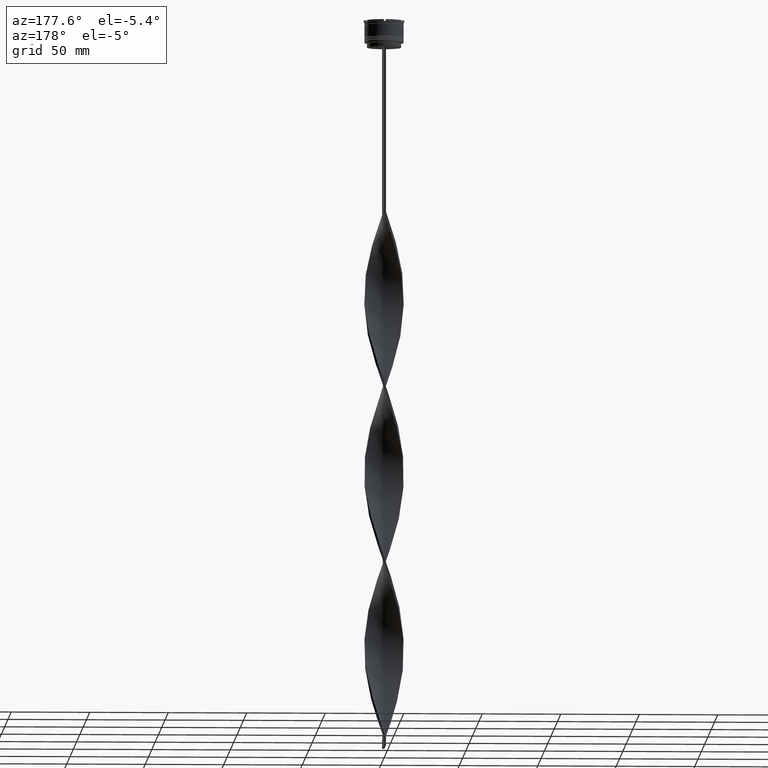
[diagram: clean part render]
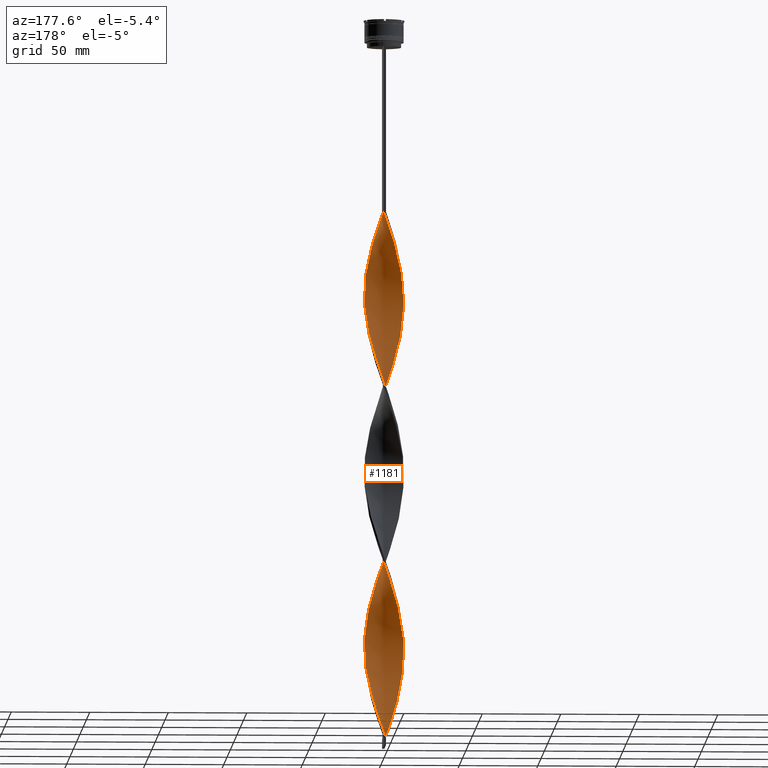
[diagram: same view with one face highlighted and labeled with its STEP entity id]
A machine part, auxiliary view. The second image highlights one B-rep face of the part: STEP entity #1181.
In plain terms, the highlighted face is a freeform B-spline surface patch.
Its self-contained STEP definition (entity closure, byte-faithful):
#7 = CARTESIAN_POINT ( 'NONE',  ( 6.665855411790017726, 10.63865670754232440, -329.1818181818181301 ) ) ;
#16 = CARTESIAN_POINT ( 'NONE',  ( 1.929121149525765855, 12.40536724576414862, -227.3636363636363171 ) ) ;
#18 = CARTESIAN_POINT ( 'NONE',  ( 3.398585475168564241, -12.08570484828248759, -354.6363636363635692 ) ) ;
#32 = CARTESIAN_POINT ( 'NONE',  ( -1.036569397005364657, 12.47950415221662368, -352.0909090909091219 ) ) ;
#37 = CARTESIAN_POINT ( 'NONE',  ( -12.50000000000000000, -0.7499999999999980016, -291.0000000000000568 ) ) ;
#39 = CARTESIAN_POINT ( 'NONE',  ( -1.036569397005366655, -12.47950415221662368, -341.9090909090909349 ) ) ;
#52 = CARTESIAN_POINT ( 'NONE',  ( 12.20496158781229035, 2.802037230306993365, -301.1818181818182438 ) ) ;
#58 = CARTESIAN_POINT ( 'NONE',  ( 12.47950415221662368, -1.036569397005364435, -397.9090909090909349 ) ) ;
#61 = CARTESIAN_POINT ( 'NONE',  ( 6.908166116216014174, 10.48293307345756631, -436.0909090909090651 ) ) ;
#77 = CARTESIAN_POINT ( 'NONE',  ( -5.345974020927152459, 11.35936647350535722, -364.8181818181818130 ) ) ;
#86 = CARTESIAN_POINT ( 'NONE',  ( 5.083967906288925143, -11.47902065681779860, -359.7272727272726343 ) ) ;
#91 = CARTESIAN_POINT ( 'NONE',  ( 1.036569397005364879, 12.47950415221662368, -453.9090909090909349 ) ) ;
#94 = CARTESIAN_POINT ( 'NONE',  ( -11.05883868218006505, 5.874911659039470102, -163.7272727272727195 ) ) ;
#105 = CARTESIAN_POINT ( 'NONE',  ( -12.08570484828248759, 3.398585475168563352, -395.3636363636363171 ) ) ;
#110 = CARTESIAN_POINT ( 'NONE',  ( 9.581720387053804799, 8.112045323846698963, -425.9090909090908781 ) ) ;
#115 = CARTESIAN_POINT ( 'NONE',  ( 4.510463666007693107, -11.68196120168289553, -250.2727272727273089 ) ) ;
#126 = CARTESIAN_POINT ( 'NONE',  ( -10.48293307345756809, -6.908166116216013286, -425.9090909090908212 ) ) ;
#131 = CARTESIAN_POINT ( 'NONE',  ( -11.47902065681779860, -5.083967906288925143, -303.7272727272727479 ) ) ;
#136 = CARTESIAN_POINT ( 'NONE',  ( -8.329727870884726215, 9.393097386316819453, -150.9999999999999432 ) ) ;
#156 = CARTESIAN_POINT ( 'NONE',  ( -0.1440176444849599058, -12.55364105866909874, -344.4545454545453254 ) ) ;
#164 = CARTESIAN_POINT ( 'NONE',  ( 12.40536724576414862, 1.929121149525767853, -298.6363636363635692 ) ) ;
#176 = CARTESIAN_POINT ( 'NONE',  ( -7.388950367818358345, -10.11018854729806549, -438.6363636363636829 ) ) ;
#181 = CARTESIAN_POINT ( 'NONE',  ( -11.78236275255014576, 4.241276690728745358, -168.8181818181818130 ) ) ;
#186 = CARTESIAN_POINT ( 'NONE',  ( -12.55364105866909874, -0.1440176444849616544, -181.5454545454545041 ) ) ;
#201 = CARTESIAN_POINT ( 'NONE',  ( -0.1440176444849628479, 12.55364105866909874, -125.5454545454545467 ) ) ;
#207 = CARTESIAN_POINT ( 'NONE',  ( -1.036569397005364657, 12.47950415221662368, -352.0909090909091219 ) ) ;
#230 = CARTESIAN_POINT ( 'NONE',  ( -6.908166116216011510, 10.48293307345756986, -369.9090909090908781 ) ) ;
#236 = CARTESIAN_POINT ( 'NONE',  ( 11.47902065681779860, 5.083967906288924254, -191.7272727272727479 ) ) ;
#254 = CARTESIAN_POINT ( 'NONE',  ( 9.393097386316817676, 8.329727870884722662, -319.0000000000000000 ) ) ;
#258 = CARTESIAN_POINT ( 'NONE',  ( 4.510463666007690442, 11.68196120168289553, -219.7272727272727195 ) ) ;
#274 = CARTESIAN_POINT ( 'NONE',  ( -12.47950415221662368, -1.036569397005362880, -408.0909090909091219 ) ) ;
#277 = CARTESIAN_POINT ( 'NONE',  ( 10.63865670754232617, 6.665855411790015062, -196.8181818181818130 ) ) ;
#290 = CARTESIAN_POINT ( 'NONE',  ( -11.35936647350535544, -5.345974020927153347, -196.8181818181818130 ) ) ;
#295 = CARTESIAN_POINT ( 'NONE',  ( -12.26603189480669442, 2.521301559826763850, -397.9090909090909349 ) ) ;
#299 = CARTESIAN_POINT ( 'NONE',  ( -4.510463666007692218, -11.68196120168289553, -331.7272727272727479 ) ) ;
#318 = CARTESIAN_POINT ( 'NONE',  ( -9.393097386316817676, 8.329727870884726215, -262.9999999999999432 ) ) ;
#322 = CARTESIAN_POINT ( 'NONE',  ( -2.802037230306999582, -12.20496158781229035, -336.8181818181818130 ) ) ;
#331 = ORIENTED_EDGE ( 'NONE', *, *, #1343, .F. ) ;
#337 = CARTESIAN_POINT ( 'NONE',  ( 12.20496158781229035, -2.802037230306999582, -168.8181818181818130 ) ) ;
#341 = CARTESIAN_POINT ( 'NONE',  ( -5.874911659039470990, 11.05883868218006505, -250.2727272727273089 ) ) ;
#352 = CARTESIAN_POINT ( 'NONE',  ( -1.929121149525765855, 12.40536724576414862, -354.6363636363635692 ) ) ;
#357 = CARTESIAN_POINT ( 'NONE',  ( -10.48293307345756809, 6.908166116216014174, -268.0909090909090082 ) ) ;
#361 = CARTESIAN_POINT ( 'NONE',  ( -5.345974020927156900, -11.35936647350535367, -329.1818181818181301 ) ) ;
#377 = CARTESIAN_POINT ( 'NONE',  ( 7.388950367818353904, 10.11018854729806726, -326.6363636363636260 ) ) ;
#385 = CARTESIAN_POINT ( 'NONE',  ( -2.521301559826761629, 12.26603189480669798, -240.0909090909090651 ) ) ;
#387 = CARTESIAN_POINT ( 'NONE',  ( 9.393097386316819453, -8.329727870884726215, -374.9999999999999432 ) ) ;
#400 = CARTESIAN_POINT ( 'NONE',  ( -10.11018854729806549, 7.388950367818356568, -382.6363636363636829 ) ) ;
#405 = CARTESIAN_POINT ( 'NONE',  ( 8.329727870884726215, 9.393097386316817676, -207.0000000000000284 ) ) ;
#424 = CARTESIAN_POINT ( 'NONE',  ( 12.50000000000000000, -0.7500000000000025535, -291.0000000000000568 ) ) ;
#430 = CARTESIAN_POINT ( 'NONE',  ( 0.7500000000000002220, -12.50000000000000000, -347.0000000000000000 ) ) ;
#435 = CARTESIAN_POINT ( 'NONE',  ( 11.47902065681779682, -5.083967906288929584, -278.2727272727271952 ) ) ;
#449 = CARTESIAN_POINT ( 'NONE',  ( 8.955724128969263731, -8.752571355081759208, -265.5454545454545041 ) ) ;
#459 = CARTESIAN_POINT ( 'NONE',  ( -12.26603189480669798, -2.521301559826760741, -296.0909090909090651 ) ) ;
#463 = CARTESIAN_POINT ( 'NONE',  ( 5.345974020927156012, 11.35936647350535367, -441.1818181818181301 ) ) ;
#467 = CARTESIAN_POINT ( 'NONE',  ( -11.47902065681779860, 5.083967906288926031, -166.2727272727272236 ) ) ;
#483 = CARTESIAN_POINT ( 'NONE',  ( 3.674953311088228425, 12.00455592986043207, -446.2727272727271952 ) ) ;
#490 = CARTESIAN_POINT ( 'NONE',  ( -0.7500000000000017764, -12.50000000000000000, -235.0000000000000000 ) ) ;
#505 = CARTESIAN_POINT ( 'NONE',  ( -2.802037230306999582, -12.20496158781229035, -336.8181818181818130 ) ) ;
#507 = CARTESIAN_POINT ( 'NONE',  ( 11.47902065681779860, 5.083967906288924254, -415.7272727272726911 ) ) ;
#510 = CARTESIAN_POINT ( 'NONE',  ( -10.11018854729806549, 7.388950367818356568, -158.6363636363636260 ) ) ;
#529 = CARTESIAN_POINT ( 'NONE',  ( -12.08570484828248759, 3.398585475168563352, -171.3636363636363171 ) ) ;
#531 = VECTOR ( 'NONE', #4035, 1000.000000000000000 ) ;
#538 = CARTESIAN_POINT ( 'NONE',  ( -9.938015229887191992, -7.618946993550368418, -204.4545454545454390 ) ) ;
#560 = CARTESIAN_POINT ( 'NONE',  ( -6.665855411790016838, -10.63865670754232440, -441.1818181818181301 ) ) ;
#564 = CARTESIAN_POINT ( 'NONE',  ( 12.26603189480669798, 2.521301559826762517, -184.0909090909090935 ) ) ;
#569 = CARTESIAN_POINT ( 'NONE',  ( -11.35936647350535544, -5.345974020927153347, -420.8181818181818130 ) ) ;
#580 = CARTESIAN_POINT ( 'NONE',  ( 7.388950367818353904, 10.11018854729806726, -326.6363636363636260 ) ) ;
#583 = CARTESIAN_POINT ( 'NONE',  ( 12.44635894133090126, 1.644017644484961904, -181.5454545454545041 ) ) ;
#603 = CARTESIAN_POINT ( 'NONE',  ( 8.112045323846700740, 9.581720387053801247, -324.0909090909090082 ) ) ;
#622 = CARTESIAN_POINT ( 'NONE',  ( -0.7499999999999986677, 12.50000000000000000, -459.0000000000000000 ) ) ;
#627 = CARTESIAN_POINT ( 'NONE',  ( 1.644017644484963236, -12.44635894133090126, -125.5454545454545467 ) ) ;
#631 = CARTESIAN_POINT ( 'NONE',  ( 2.521301559826763850, -12.26603189480669442, -128.0909090909090935 ) ) ;
#643 = CARTESIAN_POINT ( 'NONE',  ( -9.393097386316819453, -8.329727870884724439, -207.0000000000000284 ) ) ;
#648 = CARTESIAN_POINT ( 'NONE',  ( -4.510463666007691330, 11.68196120168289553, -362.2727272727273089 ) ) ;
#651 = CARTESIAN_POINT ( 'NONE',  ( 10.92114977348146354, -6.127070068571585537, -382.6363636363636829 ) ) ;
#669 = CARTESIAN_POINT ( 'NONE',  ( 4.510463666007690442, 11.68196120168289553, -219.7272727272727195 ) ) ;
#672 = CARTESIAN_POINT ( 'NONE',  ( 8.752571355081757432, -8.955724128969265507, -372.4545454545454959 ) ) ;
#693 = CARTESIAN_POINT ( 'NONE',  ( 2.802037230306997806, 12.20496158781229035, -224.8181818181818130 ) ) ;
#695 = CARTESIAN_POINT ( 'NONE',  ( -11.68196120168289553, 4.510463666007691330, -275.7272727272726911 ) ) ;
#697 = CARTESIAN_POINT ( 'NONE',  ( -4.510463666007691330, 11.68196120168289553, -138.2727272727272805 ) ) ;
#706 = CARTESIAN_POINT ( 'NONE',  ( 12.26603189480669442, -2.521301559826764738, -285.9090909090908781 ) ) ;
#711 = CARTESIAN_POINT ( 'NONE',  ( -4.241276690728740917, 11.78236275255014576, -245.1818181818181870 ) ) ;
#713 = CARTESIAN_POINT ( 'NONE',  ( 6.665855411790014173, -10.63865670754232795, -364.8181818181818130 ) ) ;
#726 = CARTESIAN_POINT ( 'NONE',  ( 4.510463666007693107, -11.68196120168289553, -250.2727272727273089 ) ) ;
#733 = CARTESIAN_POINT ( 'NONE',  ( 8.955724128969265507, 8.752571355081755655, -204.4545454545454390 ) ) ;
#737 = CARTESIAN_POINT ( 'NONE',  ( -3.674953311088235530, -12.00455592986042852, -334.2727272727272521 ) ) ;
#753 = CARTESIAN_POINT ( 'NONE',  ( 9.393097386316817676, 8.329727870884722662, -319.0000000000000000 ) ) ;
#760 = CARTESIAN_POINT ( 'NONE',  ( 12.00455592986043030, -3.674953311088231089, -166.2727272727272236 ) ) ;
#762 = CARTESIAN_POINT ( 'NONE',  ( 8.329727870884726215, 9.393097386316817676, -430.9999999999999432 ) ) ;
#778 = CARTESIAN_POINT ( 'NONE',  ( -2.521301559826764294, -12.26603189480669442, -229.9090909090909065 ) ) ;
#783 = CARTESIAN_POINT ( 'NONE',  ( -1.929121149525772960, -12.40536724576414684, -339.3636363636362603 ) ) ;
#785 = CARTESIAN_POINT ( 'NONE',  ( -0.7499999999999986677, 12.50000000000000000, -459.0000000000000000 ) ) ;
#788 = CARTESIAN_POINT ( 'NONE',  ( -11.68196120168289553, -4.510463666007690442, -194.2727272727272521 ) ) ;
#802 = CARTESIAN_POINT ( 'NONE',  ( -6.127070068571584649, 10.92114977348146354, -367.3636363636363740 ) ) ;
#808 = CARTESIAN_POINT ( 'NONE',  ( 10.92114977348146354, -6.127070068571585537, -382.6363636363636829 ) ) ;
#810 = CARTESIAN_POINT ( 'NONE',  ( 6.127070068571586425, 10.92114977348146354, -438.6363636363636829 ) ) ;
#813 = CARTESIAN_POINT ( 'NONE',  ( -7.388950367818358345, -10.11018854729806549, -214.6363636363636260 ) ) ;
#826 = CARTESIAN_POINT ( 'NONE',  ( -9.393097386316819453, -8.329727870884724439, -430.9999999999999432 ) ) ;
#833 = CARTESIAN_POINT ( 'NONE',  ( 8.752571355081757432, -8.955724128969265507, -372.4545454545454959 ) ) ;
#840 = CARTESIAN_POINT ( 'NONE',  ( -11.35936647350535544, -5.345974020927153347, -196.8181818181817846 ) ) ;
#856 = CARTESIAN_POINT ( 'NONE',  ( 12.55364105866909874, -0.1440176444849629589, -400.4545454545453822 ) ) ;
#859 = CARTESIAN_POINT ( 'NONE',  ( 0.1440176444849638193, 12.55364105866909874, -456.4545454545454390 ) ) ;
#862 = CARTESIAN_POINT ( 'NONE',  ( 11.78236275255014576, -4.241276690728744470, -280.8181818181818699 ) ) ;
#877 = CARTESIAN_POINT ( 'NONE',  ( -8.329727870884727992, -9.393097386316815900, -319.0000000000000000 ) ) ;
#883 = CARTESIAN_POINT ( 'NONE',  ( 11.68196120168289731, 4.510463666007686889, -306.2727272727272521 ) ) ;
#911 = CARTESIAN_POINT ( 'NONE',  ( 11.35936647350535722, 5.345974020927152459, -308.8181818181817562 ) ) ;
#916 = CARTESIAN_POINT ( 'NONE',  ( 11.68196120168289553, -4.510463666007692218, -163.7272727272727195 ) ) ;
#922 = CARTESIAN_POINT ( 'NONE',  ( -10.92114977348146354, -6.127070068571584649, -423.3636363636363740 ) ) ;
#932 = CARTESIAN_POINT ( 'NONE',  ( 10.48293307345757164, 6.908166116216011510, -313.9090909090908212 ) ) ;
#936 = CARTESIAN_POINT ( 'NONE',  ( 11.35936647350535722, -5.345974020927153347, -161.1818181818181870 ) ) ;
#943 =( BOUNDED_SURFACE ( )  B_SPLINE_SURFACE ( 1, 2, ( 
 ( #4367, #4336, #2461, #1757, #3180, #3920, #697, #4641, #1424, #4412, #2574, #136, #1222, #2249, #510, #4088, #94, #467, #4012, #3755, #4390, #1168, #3325, #186, #1617, #3347, #1546, #1568, #788, #840, #2324, #2672, #538, #2597, #4034, #1974, #813, #2222, #3400, #1596, #3048, #3374, #1525, #2651, #490, #2970, #4464, #2946, #2278, #3731, #115, #3656, #1145, #2996, #3710, #3685, #1869, #2623, #1922, #1243, #4440, #435, #862, #3300, #1900, #2300, #1192, #4063, #1946, #164, #3025, #4110, #883, #911, #2063, #932, #1004, #254, #2716, #603, #580, #3420, #4553, #4156, #2017, #3441, #3512, #3868, #1263, #3134, #207, #2372, #3799, #980, #648, #2392, #4177, #230, #1731, #1663, #3467, #2692, #954, #2437, #1355, #2086, #1288, #3093, #295, #4533, #4131, #4486, #274, #2351, #3489, #1637, #1330, #3822, #1309, #4575, #3068, #2043, #2418, #2737, #3779, #560, #1686, #3114, #2757, #1996, #4198, #3848, #2784 ),
 ( #4507, #627, #4224, #1706, #3219, #1468, #2148, #2889, #1770, #3934, #2844, #2520, #3956, #2456, #4331, #2478, #2107, #760, #337, #1753, #3916, #1444, #2171, #1112, #4310, #2196, #3627, #4635, #3159, #1091, #2543, #3537, #733, #405, #4617, #3889, #4599, #3601, #669, #3573, #693, #16, #1379, #2131, #2868, #1397, #385, #1070, #711, #2804, #1819, #3556, #3245, #4243, #3981, #318, #4289, #357, #1046, #1022, #3176, #2822, #3193, #4262, #1417, #2499, #37, #1790, #459, #2217, #1864, #131, #2272, #1941, #3676, #1590, #3651, #877, #4029, #1491, #1894, #3749, #3368, #4006, #505, #783, #3020, #156, #430, #3319, #3292, #2645, #2317, #86, #2569, #1840, #4082, #1519, #833, #1163, #1916, #3266, #808, #1563, #2940, #2990, #4407, #2617, #58, #856, #2592, #4432, #2912, #4458, #4385, #2965, #4056, #2243, #1238, #110, #4359, #1541, #2666, #1186, #1139, #4104, #3704, #483, #3342, #1215, #2294, #3725, #622 ) ),
 .UNSPECIFIED., .F., .F., .F. ) 
 B_SPLINE_SURFACE_WITH_KNOTS ( ( 2, 2 ),
 ( 3, 2, 2, 2, 2, 2, 2, 2, 2, 2, 2, 2, 2, 2, 2, 2, 2, 2, 2, 2, 2, 2, 2, 2, 2, 2, 2, 2, 2, 2, 2, 2, 2, 2, 2, 2, 2, 2, 2, 2, 2, 2, 2, 2, 2, 2, 2, 2, 2, 2, 2, 2, 2, 2, 2, 2, 2, 2, 2, 2, 2, 2, 2, 2, 2, 2, 3 ),
 ( 0.000000000000000000, 1.000000000000000000 ),
 ( 0.000000000000000000, 0.01136363636363636395, 0.02272727272727272790, 0.03409090909090908839, 0.04545454545454545581, 0.05681818181818181629, 0.06818181818181817677, 0.07954545454545454419, 0.09090909090909091161, 0.1022727272727272790, 0.1136363636363636326, 0.1250000000000000000, 0.1363636363636363535, 0.1477272727272727348, 0.1590909090909090884, 0.1704545454545454419, 0.1818181818181818232, 0.1931818181818181768, 0.2045454545454545581, 0.2159090909090909116, 0.2272727272727272652, 0.2386363636363636465, 0.2500000000000000000, 0.2613636363636363535, 0.2727272727272727071, 0.2840909090909091161, 0.2954545454545454697, 0.3068181818181818232, 0.3181818181818181768, 0.3295454545454545303, 0.3409090909090908839, 0.3522727272727272929, 0.3636363636363636465, 0.3750000000000000000, 0.3863636363636363535, 0.3977272727272727071, 0.4090909090909091161, 0.4204545454545454697, 0.4318181818181818232, 0.4431818181818181768, 0.4545454545454545303, 0.4659090909090908839, 0.4772727272727272929, 0.4886363636363636465, 0.5000000000000000000, 0.5113636363636363535, 0.5227272727272727071, 0.5340909090909090606, 0.5454545454545454142, 0.5568181818181817677, 0.5681818181818182323, 0.5795454545454545858, 0.5909090909090909394, 0.6022727272727272929, 0.6136363636363636465, 0.6250000000000000000, 0.6363636363636363535, 0.6477272727272727071, 0.6590909090909090606, 0.6704545454545454142, 0.6818181818181817677, 0.6931818181818182323, 0.7045454545454545858, 0.7159090909090909394, 0.7272727272727272929, 0.7386363636363636465, 0.7500000000000000000 ),
 .UNSPECIFIED. ) 
 GEOMETRIC_REPRESENTATION_ITEM ( )  RATIONAL_B_SPLINE_SURFACE ( (
 ( 1.000000000000000000, 0.9974521146102535152, 1.000000000000000000, 0.9974521146102535152, 1.000000000000000000, 0.9974521146102535152, 1.000000000000000000, 0.9974521146102535152, 1.000000000000000000, 0.9974521146102535152, 1.000000000000000000, 0.9974521146102535152, 1.000000000000000000, 0.9974521146102535152, 1.000000000000000000, 0.9974521146102535152, 1.000000000000000000, 0.9974521146102535152, 1.000000000000000000, 0.9974521146102535152, 1.000000000000000000, 0.9974521146102535152, 1.000000000000000000, 0.9974521146102535152, 1.000000000000000000, 0.9974521146102535152, 1.000000000000000000, 0.9974521146102535152, 1.000000000000000000, 0.9974521146102535152, 1.000000000000000000, 0.9974521146102535152, 1.000000000000000000, 0.9974521146102535152, 1.000000000000000000, 0.9974521146102535152, 1.000000000000000000, 0.9974521146102535152, 1.000000000000000000, 0.9974521146102535152, 1.000000000000000000, 0.9974521146102535152, 1.000000000000000000, 0.9974521146102535152, 1.000000000000000000, 0.9974521146102535152, 1.000000000000000000, 0.9974521146102535152, 1.000000000000000000, 0.9974521146102535152, 1.000000000000000000, 0.9974521146102535152, 1.000000000000000000, 0.9974521146102535152, 1.000000000000000000, 0.9974521146102535152, 1.000000000000000000, 0.9974521146102535152, 1.000000000000000000, 0.9974521146102535152, 1.000000000000000000, 0.9974521146102535152, 1.000000000000000000, 0.9974521146102535152, 1.000000000000000000, 0.9974521146102535152, 1.000000000000000000, 0.9974521146102535152, 1.000000000000000000, 0.9974521146102535152, 1.000000000000000000, 0.9974521146102535152, 1.000000000000000000, 0.9974521146102535152, 1.000000000000000000, 0.9974521146102535152, 1.000000000000000000, 0.9974521146102535152, 1.000000000000000000, 0.9974521146102535152, 1.000000000000000000, 0.9974521146102535152, 1.000000000000000000, 0.9974521146102535152, 1.000000000000000000, 0.9974521146102535152, 1.000000000000000000, 0.9974521146102535152, 1.000000000000000000, 0.9974521146102535152, 1.000000000000000000, 0.9974521146102535152, 1.000000000000000000, 0.9974521146102535152, 1.000000000000000000, 0.9974521146102535152, 1.000000000000000000, 0.9974521146102535152, 1.000000000000000000, 0.9974521146102535152, 1.000000000000000000, 0.9974521146102535152, 1.000000000000000000, 0.9974521146102535152, 1.000000000000000000, 0.9974521146102535152, 1.000000000000000000, 0.9974521146102535152, 1.000000000000000000, 0.9974521146102535152, 1.000000000000000000, 0.9974521146102535152, 1.000000000000000000, 0.9974521146102535152, 1.000000000000000000, 0.9974521146102535152, 1.000000000000000000, 0.9974521146102535152, 1.000000000000000000, 0.9974521146102535152, 1.000000000000000000, 0.9974521146102535152, 1.000000000000000000, 0.9974521146102535152, 1.000000000000000000, 0.9974521146102535152, 1.000000000000000000, 0.9974521146102535152, 1.000000000000000000, 0.9974521146102535152, 1.000000000000000000, 0.9974521146102535152, 1.000000000000000000),
 ( 1.000000000000000000, 0.9974521146102535152, 1.000000000000000000, 0.9974521146102535152, 1.000000000000000000, 0.9974521146102535152, 1.000000000000000000, 0.9974521146102535152, 1.000000000000000000, 0.9974521146102535152, 1.000000000000000000, 0.9974521146102535152, 1.000000000000000000, 0.9974521146102535152, 1.000000000000000000, 0.9974521146102535152, 1.000000000000000000, 0.9974521146102535152, 1.000000000000000000, 0.9974521146102535152, 1.000000000000000000, 0.9974521146102535152, 1.000000000000000000, 0.9974521146102535152, 1.000000000000000000, 0.9974521146102535152, 1.000000000000000000, 0.9974521146102535152, 1.000000000000000000, 0.9974521146102535152, 1.000000000000000000, 0.9974521146102535152, 1.000000000000000000, 0.9974521146102535152, 1.000000000000000000, 0.9974521146102535152, 1.000000000000000000, 0.9974521146102535152, 1.000000000000000000, 0.9974521146102535152, 1.000000000000000000, 0.9974521146102535152, 1.000000000000000000, 0.9974521146102535152, 1.000000000000000000, 0.9974521146102535152, 1.000000000000000000, 0.9974521146102535152, 1.000000000000000000, 0.9974521146102535152, 1.000000000000000000, 0.9974521146102535152, 1.000000000000000000, 0.9974521146102535152, 1.000000000000000000, 0.9974521146102535152, 1.000000000000000000, 0.9974521146102535152, 1.000000000000000000, 0.9974521146102535152, 1.000000000000000000, 0.9974521146102535152, 1.000000000000000000, 0.9974521146102535152, 1.000000000000000000, 0.9974521146102535152, 1.000000000000000000, 0.9974521146102535152, 1.000000000000000000, 0.9974521146102535152, 1.000000000000000000, 0.9974521146102535152, 1.000000000000000000, 0.9974521146102535152, 1.000000000000000000, 0.9974521146102535152, 1.000000000000000000, 0.9974521146102535152, 1.000000000000000000, 0.9974521146102535152, 1.000000000000000000, 0.9974521146102535152, 1.000000000000000000, 0.9974521146102535152, 1.000000000000000000, 0.9974521146102535152, 1.000000000000000000, 0.9974521146102535152, 1.000000000000000000, 0.9974521146102535152, 1.000000000000000000, 0.9974521146102535152, 1.000000000000000000, 0.9974521146102535152, 1.000000000000000000, 0.9974521146102535152, 1.000000000000000000, 0.9974521146102535152, 1.000000000000000000, 0.9974521146102535152, 1.000000000000000000, 0.9974521146102535152, 1.000000000000000000, 0.9974521146102535152, 1.000000000000000000, 0.9974521146102535152, 1.000000000000000000, 0.9974521146102535152, 1.000000000000000000, 0.9974521146102535152, 1.000000000000000000, 0.9974521146102535152, 1.000000000000000000, 0.9974521146102535152, 1.000000000000000000, 0.9974521146102535152, 1.000000000000000000, 0.9974521146102535152, 1.000000000000000000, 0.9974521146102535152, 1.000000000000000000, 0.9974521146102535152, 1.000000000000000000, 0.9974521146102535152, 1.000000000000000000, 0.9974521146102535152, 1.000000000000000000, 0.9974521146102535152, 1.000000000000000000, 0.9974521146102535152, 1.000000000000000000, 0.9974521146102535152, 1.000000000000000000) ) ) 
 REPRESENTATION_ITEM ( '' )  SURFACE ( )  );
#954 = CARTESIAN_POINT ( 'NONE',  ( -10.11018854729806549, 7.388950367818356568, -382.6363636363636829 ) ) ;
#957 = CARTESIAN_POINT ( 'NONE',  ( -0.7499999999999986677, 12.50000000000000000, -235.0000000000000000 ) ) ;
#962 = CARTESIAN_POINT ( 'NONE',  ( -0.7500000000000007772, -4.166666666666667851, -459.0000000000000000 ) ) ;
#980 = CARTESIAN_POINT ( 'NONE',  ( -3.674953311088230201, 12.00455592986043030, -359.7272727272726343 ) ) ;
#987 = CARTESIAN_POINT ( 'NONE',  ( 12.55364105866909874, -0.1440176444849629589, -176.4545454545454390 ) ) ;
#1004 = CARTESIAN_POINT ( 'NONE',  ( 9.938015229887190216, 7.618946993550371971, -316.4545454545454390 ) ) ;
#1005 = ORIENTED_EDGE ( 'NONE', *, *, #1489, .F. ) ;
#1008 = CARTESIAN_POINT ( 'NONE',  ( -12.08570484828248759, -3.398585475168566017, -298.6363636363635692 ) ) ;
#1019 = CARTESIAN_POINT ( 'NONE',  ( -10.92114977348146354, -6.127070068571584649, -199.3636363636363455 ) ) ;
#1022 = CARTESIAN_POINT ( 'NONE',  ( -11.35936647350535367, 5.345974020927156900, -273.1818181818181870 ) ) ;
#1025 = CARTESIAN_POINT ( 'NONE',  ( -1.929121149525772960, -12.40536724576414684, -339.3636363636363171 ) ) ;
#1046 = CARTESIAN_POINT ( 'NONE',  ( -10.92114977348146532, 6.127070068571582873, -270.6363636363636829 ) ) ;
#1049 = CARTESIAN_POINT ( 'NONE',  ( -8.955724128969263731, -8.752571355081759208, -316.4545454545454390 ) ) ;
#1067 = CARTESIAN_POINT ( 'NONE',  ( 5.083967906288930472, 11.47902065681779682, -334.2727272727272521 ) ) ;
#1070 = CARTESIAN_POINT ( 'NONE',  ( -3.398585475168561132, 12.08570484828248759, -242.6363636363635976 ) ) ;
#1072 = CARTESIAN_POINT ( 'NONE',  ( -5.083967906288926031, 11.47902065681779860, -247.7272727272727195 ) ) ;
#1085 = CARTESIAN_POINT ( 'NONE',  ( -8.955724128969265507, 8.752571355081757432, -377.5454545454545610 ) ) ;
#1091 = CARTESIAN_POINT ( 'NONE',  ( 10.63865670754232617, 6.665855411790015950, -196.8181818181817846 ) ) ;
#1093 = CARTESIAN_POINT ( 'NONE',  ( 12.50000000000000000, 0.7499999999999994449, -403.0000000000000000 ) ) ;
#1105 = CARTESIAN_POINT ( 'NONE',  ( -3.674953311088230201, 12.00455592986043030, -359.7272727272726911 ) ) ;
#1112 = CARTESIAN_POINT ( 'NONE',  ( 12.44635894133090126, 1.644017644484961904, -181.5454545454545041 ) ) ;
#1132 = CARTESIAN_POINT ( 'NONE',  ( 7.618946993550368418, -9.938015229887193769, -260.4545454545454959 ) ) ;
#1139 = CARTESIAN_POINT ( 'NONE',  ( 6.127070068571586425, 10.92114977348146354, -438.6363636363636829 ) ) ;
#1142 = CARTESIAN_POINT ( 'NONE',  ( 2.802037230306997806, 12.20496158781229035, -448.8181818181818130 ) ) ;
#1145 = CARTESIAN_POINT ( 'NONE',  ( 6.127070068571584649, -10.92114977348146354, -255.3636363636363455 ) ) ;
#1158 = CARTESIAN_POINT ( 'NONE',  ( 6.908166116216011510, -10.48293307345756809, -257.9090909090909349 ) ) ;
#1163 = CARTESIAN_POINT ( 'NONE',  ( 9.393097386316819453, -8.329727870884726215, -374.9999999999999432 ) ) ;
#1168 = CARTESIAN_POINT ( 'NONE',  ( -12.44635894133090126, 1.644017644484963236, -176.4545454545454390 ) ) ;
#1181 = ADVANCED_FACE ( 'NONE', ( #1497 ), #943, .T. ) ;
#1186 = CARTESIAN_POINT ( 'NONE',  ( 6.908166116216014174, 10.48293307345756809, -436.0909090909091219 ) ) ;
#1192 = CARTESIAN_POINT ( 'NONE',  ( 12.50000000000000000, -0.7500000000000025535, -291.0000000000000568 ) ) ;
#1201 = ORIENTED_EDGE ( 'NONE', *, *, #4018, .T. ) ;
#1205 = CARTESIAN_POINT ( 'NONE',  ( -4.241276690728744470, -11.78236275255014576, -448.8181818181818130 ) ) ;
#1215 = CARTESIAN_POINT ( 'NONE',  ( 1.929121149525765855, 12.40536724576414862, -451.3636363636364877 ) ) ;
#1219 = CARTESIAN_POINT ( 'NONE',  ( 12.26603189480669798, 2.521301559826762517, -408.0909090909091219 ) ) ;
#1220 = CARTESIAN_POINT ( 'NONE',  ( -0.7500000000000017764, -12.50000000000000000, -459.0000000000000000 ) ) ;
#1222 = CARTESIAN_POINT ( 'NONE',  ( -8.955724128969265507, 8.752571355081757432, -153.5454545454545325 ) ) ;
#1232 = CARTESIAN_POINT ( 'NONE',  ( -12.20496158781229035, -2.802037230306997806, -413.1818181818181870 ) ) ;
#1238 = CARTESIAN_POINT ( 'NONE',  ( 10.11018854729806549, 7.388950367818355680, -423.3636363636363740 ) ) ;
#1243 = CARTESIAN_POINT ( 'NONE',  ( 10.63865670754232440, -6.665855411790017726, -273.1818181818181870 ) ) ;
#1253 = CARTESIAN_POINT ( 'NONE',  ( -3.398585475168564241, -12.08570484828248759, -451.3636363636364308 ) ) ;
#1263 = CARTESIAN_POINT ( 'NONE',  ( 0.7500000000000002220, 12.50000000000000000, -347.0000000000000000 ) ) ;
#1267 = CARTESIAN_POINT ( 'NONE',  ( 10.48293307345756809, -6.908166116216013286, -156.0909090909090935 ) ) ;
#1288 = CARTESIAN_POINT ( 'NONE',  ( -11.78236275255014576, 4.241276690728745358, -392.8181818181818699 ) ) ;
#1293 = CARTESIAN_POINT ( 'NONE',  ( 3.398585475168564241, -12.08570484828248759, -130.6363636363636260 ) ) ;
#1304 = CARTESIAN_POINT ( 'NONE',  ( -8.329727870884726215, 9.393097386316819453, -150.9999999999999716 ) ) ;
#1309 = CARTESIAN_POINT ( 'NONE',  ( -10.92114977348146354, -6.127070068571584649, -423.3636363636363740 ) ) ;
#1325 = CARTESIAN_POINT ( 'NONE',  ( -12.00455592986043030, -3.674953311088229313, -191.7272727272727479 ) ) ;
#1330 = CARTESIAN_POINT ( 'NONE',  ( -11.68196120168289553, -4.510463666007690442, -418.2727272727273089 ) ) ;
#1334 = CARTESIAN_POINT ( 'NONE',  ( 12.40536724576414862, -1.929121149525764967, -171.3636363636363171 ) ) ;
#1343 = EDGE_CURVE ( 'NONE', #3628, #2687, #3496, .T. ) ;
#1355 = CARTESIAN_POINT ( 'NONE',  ( -11.05883868218006505, 5.874911659039470102, -387.7272727272727479 ) ) ;
#1361 = CARTESIAN_POINT ( 'NONE',  ( 12.08570484828248759, 3.398585475168565129, -186.6363636363636260 ) ) ;
#1375 = CARTESIAN_POINT ( 'NONE',  ( -5.083967906288923366, -11.47902065681780037, -222.2727272727272805 ) ) ;
#1379 = CARTESIAN_POINT ( 'NONE',  ( 1.036569397005364879, 12.47950415221662368, -229.9090909090909065 ) ) ;
#1383 = CARTESIAN_POINT ( 'NONE',  ( -8.112045323846695410, 9.581720387053804799, -257.9090909090909349 ) ) ;
#1397 = CARTESIAN_POINT ( 'NONE',  ( -1.644017644484961016, 12.44635894133090126, -237.5454545454545325 ) ) ;
#1400 = CARTESIAN_POINT ( 'NONE',  ( -6.665855411790015062, 10.63865670754232795, -252.8181818181817846 ) ) ;
#1412 = CARTESIAN_POINT ( 'NONE',  ( 12.44635894133090126, -1.644017644484959240, -288.4545454545454390 ) ) ;
#1417 = CARTESIAN_POINT ( 'NONE',  ( -12.47950415221662368, 1.036569397005365545, -285.9090909090908781 ) ) ;
#1420 = CARTESIAN_POINT ( 'NONE',  ( -12.44635894133090126, -1.644017644484965901, -293.5454545454545041 ) ) ;
#1424 = CARTESIAN_POINT ( 'NONE',  ( -6.127070068571584649, 10.92114977348146354, -143.3636363636363740 ) ) ;
#1438 = CARTESIAN_POINT ( 'NONE',  ( 12.08570484828248581, -3.398585475168570458, -283.3636363636363171 ) ) ;
#1444 = CARTESIAN_POINT ( 'NONE',  ( 12.55364105866909874, -0.1440176444849629589, -176.4545454545454390 ) ) ;
#1446 = CARTESIAN_POINT ( 'NONE',  ( 12.00455592986043030, -3.674953311088231089, -390.2727272727272521 ) ) ;
#1462 = CARTESIAN_POINT ( 'NONE',  ( 9.581720387053803023, -8.112045323846697187, -268.0909090909090651 ) ) ;
#1468 = CARTESIAN_POINT ( 'NONE',  ( 5.083967906288925143, -11.47902065681779860, -135.7272727272726911 ) ) ;
#1470 = CARTESIAN_POINT ( 'NONE',  ( 5.874911659039469214, -11.05883868218006505, -362.2727272727273089 ) ) ;
#1483 = CARTESIAN_POINT ( 'NONE',  ( 0.7500000000000002220, 12.50000000000000000, -347.0000000000000000 ) ) ;
#1489 = EDGE_CURVE ( 'NONE', #2687, #2167, #3485, .T. ) ;
#1491 = CARTESIAN_POINT ( 'NONE',  ( -6.908166116216016839, -10.48293307345756631, -324.0909090909090082 ) ) ;
#1497 = FACE_OUTER_BOUND ( 'NONE', #3941, .T. ) ;
#1512 = CARTESIAN_POINT ( 'NONE',  ( 2.521301559826766070, 12.26603189480669442, -341.9090909090909349 ) ) ;
#1519 = CARTESIAN_POINT ( 'NONE',  ( 8.112045323846697187, -9.581720387053804799, -369.9090909090908781 ) ) ;
#1525 = CARTESIAN_POINT ( 'NONE',  ( -2.521301559826764294, -12.26603189480669442, -229.9090909090909065 ) ) ;
#1536 = CARTESIAN_POINT ( 'NONE',  ( -0.7500000000000017764, -12.50000000000000000, -459.0000000000000000 ) ) ;
#1541 = CARTESIAN_POINT ( 'NONE',  ( 8.329727870884726215, 9.393097386316817676, -430.9999999999999432 ) ) ;
#1546 = CARTESIAN_POINT ( 'NONE',  ( -12.20496158781229035, -2.802037230306997806, -189.1818181818181870 ) ) ;
#1558 = CARTESIAN_POINT ( 'NONE',  ( -11.68196120168289553, -4.510463666007690442, -418.2727272727273089 ) ) ;
#1563 = CARTESIAN_POINT ( 'NONE',  ( 11.35936647350535722, -5.345974020927153347, -385.1818181818180733 ) ) ;
#1568 = CARTESIAN_POINT ( 'NONE',  ( -12.00455592986043030, -3.674953311088229313, -191.7272727272727479 ) ) ;
#1590 = CARTESIAN_POINT ( 'NONE',  ( -9.581720387053806576, -8.112045323846697187, -313.9090909090908212 ) ) ;
#1596 = CARTESIAN_POINT ( 'NONE',  ( -5.083967906288923366, -11.47902065681780037, -222.2727272727272805 ) ) ;
#1617 = CARTESIAN_POINT ( 'NONE',  ( -12.47950415221662368, -1.036569397005362880, -184.0909090909090935 ) ) ;
#1631 = CARTESIAN_POINT ( 'NONE',  ( -1.929121149525765855, 12.40536724576414862, -130.6363636363636260 ) ) ;
#1637 = CARTESIAN_POINT ( 'NONE',  ( -12.00455592986043030, -3.674953311088229313, -415.7272727272726911 ) ) ;
#1654 = CARTESIAN_POINT ( 'NONE',  ( -10.63865670754232795, 6.665855411790015062, -161.1818181818181870 ) ) ;
#1663 = CARTESIAN_POINT ( 'NONE',  ( -8.329727870884726215, 9.393097386316819453, -374.9999999999999432 ) ) ;
#1669 = CARTESIAN_POINT ( 'NONE',  ( 2.802037230306997806, 12.20496158781229035, -224.8181818181818130 ) ) ;
#1681 = CARTESIAN_POINT ( 'NONE',  ( -12.40536724576414862, -1.929121149525766965, -186.6363636363636260 ) ) ;
#1686 = CARTESIAN_POINT ( 'NONE',  ( -5.874911659039468326, -11.05883868218006505, -443.7272727272727479 ) ) ;
#1689 = CARTESIAN_POINT ( 'NONE',  ( 7.388950367818355680, -10.11018854729806726, -143.3636363636363740 ) ) ;
#1706 = CARTESIAN_POINT ( 'NONE',  ( 3.398585475168563796, -12.08570484828248759, -130.6363636363636545 ) ) ;
#1709 = CARTESIAN_POINT ( 'NONE',  ( 8.329727870884726215, 9.393097386316817676, -207.0000000000000284 ) ) ;
#1716 = CARTESIAN_POINT ( 'NONE',  ( -0.7499999999999996669, 4.166666666666667851, -459.0000000000000000 ) ) ;
#1726 = CARTESIAN_POINT ( 'NONE',  ( -5.874911659039468326, -11.05883868218006505, -219.7272727272727195 ) ) ;
#1731 = CARTESIAN_POINT ( 'NONE',  ( -7.618946993550370195, 9.938015229887191992, -372.4545454545454959 ) ) ;
#1737 = CARTESIAN_POINT ( 'NONE',  ( 12.20496158781229035, -2.802037230306999582, -392.8181818181818699 ) ) ;
#1753 = CARTESIAN_POINT ( 'NONE',  ( 12.40536724576414862, -1.929121149525764967, -171.3636363636363171 ) ) ;
#1755 = CARTESIAN_POINT ( 'NONE',  ( 1.644017644484963236, -12.44635894133090126, -349.5454545454545610 ) ) ;
#1757 = CARTESIAN_POINT ( 'NONE',  ( -1.929121149525765855, 12.40536724576414862, -130.6363636363636545 ) ) ;
#1770 = CARTESIAN_POINT ( 'NONE',  ( 7.388950367818355680, -10.11018854729806726, -143.3636363636363740 ) ) ;
#1773 = CARTESIAN_POINT ( 'NONE',  ( -6.127070068571582873, -10.92114977348146354, -326.6363636363636260 ) ) ;
#1784 = CARTESIAN_POINT ( 'NONE',  ( -6.908166116216011510, 10.48293307345756809, -369.9090909090909349 ) ) ;
#1790 = CARTESIAN_POINT ( 'NONE',  ( -12.44635894133090126, -1.644017644484965679, -293.5454545454544473 ) ) ;
#1794 = CARTESIAN_POINT ( 'NONE',  ( 8.112045323846695410, -9.581720387053804799, -369.9090909090909349 ) ) ;
#1813 = CARTESIAN_POINT ( 'NONE',  ( 2.802037230306994253, -12.20496158781229035, -245.1818181818181870 ) ) ;
#1819 = CARTESIAN_POINT ( 'NONE',  ( -5.874911659039470990, 11.05883868218006505, -250.2727272727273089 ) ) ;
#1821 = CARTESIAN_POINT ( 'NONE',  ( -10.92114977348146532, 6.127070068571582873, -270.6363636363636829 ) ) ;
#1835 = CARTESIAN_POINT ( 'NONE',  ( 5.874911659039470102, 11.05883868218006505, -331.7272727272727479 ) ) ;
#1840 = CARTESIAN_POINT ( 'NONE',  ( 6.665855411790015062, -10.63865670754232795, -364.8181818181818130 ) ) ;
#1842 = CARTESIAN_POINT ( 'NONE',  ( 8.955724128969265507, 8.752571355081755655, -428.4545454545454959 ) ) ;
#1857 = CARTESIAN_POINT ( 'NONE',  ( 10.48293307345756986, 6.908166116216011510, -313.9090909090908781 ) ) ;
#1864 = CARTESIAN_POINT ( 'NONE',  ( -11.78236275255014576, -4.241276690728740029, -301.1818181818182438 ) ) ;
#1869 = CARTESIAN_POINT ( 'NONE',  ( 8.955724128969263731, -8.752571355081759208, -265.5454545454545041 ) ) ;
#1885 = CARTESIAN_POINT ( 'NONE',  ( 11.78236275255014576, -4.241276690728744470, -280.8181818181818699 ) ) ;
#1894 = CARTESIAN_POINT ( 'NONE',  ( -6.127070068571582873, -10.92114977348146354, -326.6363636363636260 ) ) ;
#1900 = CARTESIAN_POINT ( 'NONE',  ( 12.26603189480669442, -2.521301559826764738, -285.9090909090908781 ) ) ;
#1916 = CARTESIAN_POINT ( 'NONE',  ( 9.938015229887191992, -7.618946993550370195, -377.5454545454545610 ) ) ;
#1922 = CARTESIAN_POINT ( 'NONE',  ( 10.11018854729806904, -7.388950367818353904, -270.6363636363636829 ) ) ;
#1941 = CARTESIAN_POINT ( 'NONE',  ( -10.63865670754232795, -6.665855411790015062, -308.8181818181817562 ) ) ;
#1946 = CARTESIAN_POINT ( 'NONE',  ( 12.47950415221662368, 1.036569397005361104, -296.0909090909090651 ) ) ;
#1974 = CARTESIAN_POINT ( 'NONE',  ( -8.112045323846698963, -9.581720387053803023, -212.0909090909090651 ) ) ;
#1985 = CARTESIAN_POINT ( 'NONE',  ( -12.26603189480669442, 2.521301559826763850, -397.9090909090909349 ) ) ;
#1996 = CARTESIAN_POINT ( 'NONE',  ( -3.398585475168563796, -12.08570484828248759, -451.3636363636364877 ) ) ;
#2000 = CARTESIAN_POINT ( 'NONE',  ( 9.581720387053804799, 8.112045323846697187, -201.9090909090909065 ) ) ;
#2017 = CARTESIAN_POINT ( 'NONE',  ( 4.241276690728745358, 11.78236275255014576, -336.8181818181818130 ) ) ;
#2020 = CARTESIAN_POINT ( 'NONE',  ( 6.665855411790014173, -10.63865670754232795, -140.8181818181818130 ) ) ;
#2031 = CARTESIAN_POINT ( 'NONE',  ( 0.7500000000000002220, 12.50000000000000000, -123.0000000000000000 ) ) ;
#2034 = CARTESIAN_POINT ( 'NONE',  ( -7.618946993550370195, 9.938015229887191992, -148.4545454545454390 ) ) ;
#2043 = CARTESIAN_POINT ( 'NONE',  ( -9.393097386316819453, -8.329727870884724439, -430.9999999999999432 ) ) ;
#2048 = CARTESIAN_POINT ( 'NONE',  ( 12.20496158781229035, -2.802037230306999582, -168.8181818181818130 ) ) ;
#2063 = CARTESIAN_POINT ( 'NONE',  ( 10.92114977348146709, 6.127070068571577544, -311.3636363636363740 ) ) ;
#2068 = CARTESIAN_POINT ( 'NONE',  ( 9.393097386316819453, -8.329727870884726215, -150.9999999999999716 ) ) ;
#2081 = CARTESIAN_POINT ( 'NONE',  ( -7.388950367818358345, -10.11018854729806549, -214.6363636363636260 ) ) ;
#2086 = CARTESIAN_POINT ( 'NONE',  ( -11.47902065681779860, 5.083967906288926031, -390.2727272727272521 ) ) ;
#2090 = CARTESIAN_POINT ( 'NONE',  ( -8.329727870884727992, -9.393097386316815900, -319.0000000000000000 ) ) ;
#2107 = CARTESIAN_POINT ( 'NONE',  ( 11.68196120168289553, -4.510463666007692218, -163.7272727272727195 ) ) ;
#2112 = CARTESIAN_POINT ( 'NONE',  ( 9.938015229887191992, -7.618946993550370195, -377.5454545454545610 ) ) ;
#2131 = CARTESIAN_POINT ( 'NONE',  ( 0.1440176444849638193, 12.55364105866909874, -232.4545454545454390 ) ) ;
#2133 = CARTESIAN_POINT ( 'NONE',  ( -8.752571355081755655, 8.955724128969267284, -260.4545454545454959 ) ) ;
#2144 = CARTESIAN_POINT ( 'NONE',  ( 12.55364105866909874, 0.1440176444849655957, -293.5454545454545041 ) ) ;
#2148 = CARTESIAN_POINT ( 'NONE',  ( 5.874911659039469214, -11.05883868218006505, -138.2727272727272805 ) ) ;
#2151 = CARTESIAN_POINT ( 'NONE',  ( 5.083967906288925143, -11.47902065681779860, -359.7272727272726911 ) ) ;
#2163 = CARTESIAN_POINT ( 'NONE',  ( 12.40536724576414862, 1.929121149525767853, -298.6363636363635692 ) ) ;
#2167 = VERTEX_POINT ( 'NONE', #4557 ) ;
#2171 = CARTESIAN_POINT ( 'NONE',  ( 12.50000000000000000, 0.7499999999999994449, -179.0000000000000000 ) ) ;
#2175 = CARTESIAN_POINT ( 'NONE',  ( 4.241276690728744470, -11.78236275255014576, -357.1818181818181301 ) ) ;
#2191 = CARTESIAN_POINT ( 'NONE',  ( -8.329727870884726215, 9.393097386316819453, -374.9999999999999432 ) ) ;
#2196 = CARTESIAN_POINT ( 'NONE',  ( 12.08570484828248759, 3.398585475168564685, -186.6363636363636260 ) ) ;
#2212 = CARTESIAN_POINT ( 'NONE',  ( 11.47902065681779682, -5.083967906288929584, -278.2727272727272521 ) ) ;
#2217 = CARTESIAN_POINT ( 'NONE',  ( -12.08570484828248759, -3.398585475168565573, -298.6363636363635692 ) ) ;
#2219 = CARTESIAN_POINT ( 'NONE',  ( 4.510463666007690442, 11.68196120168289553, -443.7272727272727479 ) ) ;
#2222 = CARTESIAN_POINT ( 'NONE',  ( -6.665855411790016838, -10.63865670754232440, -217.1818181818181586 ) ) ;
#2235 = CARTESIAN_POINT ( 'NONE',  ( 1.929121149525763412, -12.40536724576414862, -242.6363636363636260 ) ) ;
#2243 = CARTESIAN_POINT ( 'NONE',  ( 10.63865670754232617, 6.665855411790015950, -420.8181818181818130 ) ) ;
#2249 = CARTESIAN_POINT ( 'NONE',  ( -9.581720387053804799, 8.112045323846698963, -156.0909090909090935 ) ) ;
#2272 = CARTESIAN_POINT ( 'NONE',  ( -11.05883868218006683, -5.874911659039464773, -306.2727272727272521 ) ) ;
#2278 = CARTESIAN_POINT ( 'NONE',  ( 2.802037230306994253, -12.20496158781229035, -245.1818181818181870 ) ) ;
#2289 = CARTESIAN_POINT ( 'NONE',  ( -5.874911659039468326, -11.05883868218006505, -443.7272727272727479 ) ) ;
#2294 = CARTESIAN_POINT ( 'NONE',  ( 1.036569397005364879, 12.47950415221662368, -453.9090909090909349 ) ) ;
#2300 = CARTESIAN_POINT ( 'NONE',  ( 12.44635894133090126, -1.644017644484959240, -288.4545454545454390 ) ) ;
#2312 = CARTESIAN_POINT ( 'NONE',  ( -8.752571355081759208, -8.955724128969263731, -433.5454545454545610 ) ) ;
#2317 = CARTESIAN_POINT ( 'NONE',  ( 4.241276690728744470, -11.78236275255014576, -357.1818181818181301 ) ) ;
#2324 = CARTESIAN_POINT ( 'NONE',  ( -10.92114977348146354, -6.127070068571584649, -199.3636363636363455 ) ) ;
#2345 = CARTESIAN_POINT ( 'NONE',  ( -6.908166116216011510, 10.48293307345756809, -145.9090909090909065 ) ) ;
#2351 = CARTESIAN_POINT ( 'NONE',  ( -12.40536724576414862, -1.929121149525766965, -410.6363636363636260 ) ) ;
#2356 = CARTESIAN_POINT ( 'NONE',  ( 11.78236275255014576, 4.241276690728744470, -189.1818181818181870 ) ) ;
#2362 = CARTESIAN_POINT ( 'NONE',  ( -11.47902065681779860, 5.083967906288926031, -390.2727272727272521 ) ) ;
#2372 = CARTESIAN_POINT ( 'NONE',  ( -1.929121149525765855, 12.40536724576414862, -354.6363636363635692 ) ) ;
#2375 = CARTESIAN_POINT ( 'NONE',  ( 12.00455592986043030, -3.674953311088231089, -166.2727272727272521 ) ) ;
#2386 = CARTESIAN_POINT ( 'NONE',  ( -12.50000000000000000, 0.7500000000000009992, -179.0000000000000000 ) ) ;
#2392 = CARTESIAN_POINT ( 'NONE',  ( -5.345974020927152459, 11.35936647350535722, -364.8181818181818130 ) ) ;
#2410 = CARTESIAN_POINT ( 'NONE',  ( -4.510463666007691330, 11.68196120168289553, -138.2727272727272805 ) ) ;
#2418 = CARTESIAN_POINT ( 'NONE',  ( -8.752571355081759208, -8.955724128969263731, -433.5454545454545610 ) ) ;
#2432 = CARTESIAN_POINT ( 'NONE',  ( -3.674953311088230201, 12.00455592986043030, -135.7272727272726911 ) ) ;
#2437 = CARTESIAN_POINT ( 'NONE',  ( -10.63865670754232795, 6.665855411790015950, -385.1818181818180733 ) ) ;
#2441 = CARTESIAN_POINT ( 'NONE',  ( -10.48293307345756631, 6.908166116216014174, -268.0909090909090651 ) ) ;
#2456 = CARTESIAN_POINT ( 'NONE',  ( 10.48293307345756986, -6.908166116216013286, -156.0909090909090935 ) ) ;
#2458 = CARTESIAN_POINT ( 'NONE',  ( 0.7500000000000002220, -12.50000000000000000, -347.0000000000000000 ) ) ;
#2461 = CARTESIAN_POINT ( 'NONE',  ( -1.036569397005364657, 12.47950415221662368, -128.0909090909090935 ) ) ;
#2465 = CARTESIAN_POINT ( 'NONE',  ( -0.7500000000000017764, -12.50000000000000000, -459.0000000000000000 ) ) ;
#2478 = CARTESIAN_POINT ( 'NONE',  ( 11.35936647350535722, -5.345974020927153347, -161.1818181818181870 ) ) ;
#2482 = CARTESIAN_POINT ( 'NONE',  ( -12.50000000000000000, -0.7499999999999980016, -291.0000000000000568 ) ) ;
#2495 = CARTESIAN_POINT ( 'NONE',  ( 3.398585475168571346, 12.08570484828248581, -339.3636363636363171 ) ) ;
#2499 = CARTESIAN_POINT ( 'NONE',  ( -12.55364105866909874, 0.1440176444849590454, -288.4545454545454390 ) ) ;
#2501 = CARTESIAN_POINT ( 'NONE',  ( -10.11018854729807082, -7.388950367818350351, -311.3636363636363740 ) ) ;
#2513 = CARTESIAN_POINT ( 'NONE',  ( -9.581720387053804799, 8.112045323846697187, -380.0909090909090651 ) ) ;
#2520 = CARTESIAN_POINT ( 'NONE',  ( 9.393097386316819453, -8.329727870884726215, -150.9999999999999432 ) ) ;
#2522 = CARTESIAN_POINT ( 'NONE',  ( -11.05883868218006683, -5.874911659039464773, -306.2727272727272521 ) ) ;
#2535 = CARTESIAN_POINT ( 'NONE',  ( 9.938015229887190216, 7.618946993550371971, -316.4545454545454390 ) ) ;
#2543 = CARTESIAN_POINT ( 'NONE',  ( 10.11018854729806549, 7.388950367818355680, -199.3636363636363455 ) ) ;
#2547 = CARTESIAN_POINT ( 'NONE',  ( 1.929121149525765855, 12.40536724576414862, -451.3636363636364308 ) ) ;
#2564 = CARTESIAN_POINT ( 'NONE',  ( 10.63865670754232440, -6.665855411790017726, -273.1818181818181870 ) ) ;
#2569 = CARTESIAN_POINT ( 'NONE',  ( 5.874911659039469214, -11.05883868218006505, -362.2727272727273089 ) ) ;
#2574 = CARTESIAN_POINT ( 'NONE',  ( -7.618946993550370195, 9.938015229887191992, -148.4545454545454390 ) ) ;
#2587 = CARTESIAN_POINT ( 'NONE',  ( 11.05883868218006505, -5.874911659039469214, -275.7272727272726911 ) ) ;
#2592 = CARTESIAN_POINT ( 'NONE',  ( 12.50000000000000000, 0.7499999999999994449, -403.0000000000000000 ) ) ;
#2597 = CARTESIAN_POINT ( 'NONE',  ( -9.393097386316819453, -8.329727870884724439, -207.0000000000000284 ) ) ;
#2598 = CARTESIAN_POINT ( 'NONE',  ( 0.7500000000000002220, -12.50000000000000000, -123.0000000000000000 ) ) ;
#2617 = CARTESIAN_POINT ( 'NONE',  ( 12.40536724576414862, -1.929121149525764967, -395.3636363636362603 ) ) ;
#2623 = CARTESIAN_POINT ( 'NONE',  ( 9.581720387053803023, -8.112045323846698963, -268.0909090909090082 ) ) ;
#2637 = CARTESIAN_POINT ( 'NONE',  ( -8.112045323846697187, -9.581720387053803023, -436.0909090909090651 ) ) ;
#2645 = CARTESIAN_POINT ( 'NONE',  ( 3.398585475168563796, -12.08570484828248759, -354.6363636363635692 ) ) ;
#2648 = CARTESIAN_POINT ( 'NONE',  ( 7.618946993550371971, 9.938015229887190216, -433.5454545454545610 ) ) ;
#2651 = CARTESIAN_POINT ( 'NONE',  ( -1.644017644484964125, -12.44635894133090126, -232.4545454545454390 ) ) ;
#2661 = CARTESIAN_POINT ( 'NONE',  ( -2.521301559826764294, -12.26603189480669442, -453.9090909090909349 ) ) ;
#2666 = CARTESIAN_POINT ( 'NONE',  ( 7.618946993550371971, 9.938015229887190216, -433.5454545454545610 ) ) ;
#2672 = CARTESIAN_POINT ( 'NONE',  ( -10.48293307345756986, -6.908166116216013286, -201.9090909090908781 ) ) ;
#2687 = VERTEX_POINT ( 'NONE', #1220 ) ;
#2692 = CARTESIAN_POINT ( 'NONE',  ( -9.581720387053804799, 8.112045323846698963, -380.0909090909090651 ) ) ;
#2697 = CARTESIAN_POINT ( 'NONE',  ( 12.50000000000000000, 0.7499999999999994449, -179.0000000000000000 ) ) ;
#2704 = CARTESIAN_POINT ( 'NONE',  ( -11.78236275255014576, 4.241276690728745358, -392.8181818181818699 ) ) ;
#2716 = CARTESIAN_POINT ( 'NONE',  ( 8.752571355081753879, 8.955724128969267284, -321.5454545454545610 ) ) ;
#2720 = CARTESIAN_POINT ( 'NONE',  ( 5.874911659039469214, -11.05883868218006505, -138.2727272727272805 ) ) ;
#2732 = CARTESIAN_POINT ( 'NONE',  ( -12.44635894133090126, 1.644017644484963236, -176.4545454545454390 ) ) ;
#2737 = CARTESIAN_POINT ( 'NONE',  ( -8.112045323846698963, -9.581720387053803023, -436.0909090909091219 ) ) ;
#2751 = CARTESIAN_POINT ( 'NONE',  ( -6.127070068571584649, 10.92114977348146354, -143.3636363636363740 ) ) ;
#2757 = CARTESIAN_POINT ( 'NONE',  ( -4.241276690728744470, -11.78236275255014576, -448.8181818181818130 ) ) ;
#2776 = CARTESIAN_POINT ( 'NONE',  ( -1.036569397005364657, 12.47950415221662368, -128.0909090909090935 ) ) ;
#2784 = CARTESIAN_POINT ( 'NONE',  ( -0.7500000000000017764, -12.50000000000000000, -459.0000000000000000 ) ) ;
#2788 = CARTESIAN_POINT ( 'NONE',  ( 6.908166116216014174, 10.48293307345756631, -212.0909090909090935 ) ) ;
#2800 = CARTESIAN_POINT ( 'NONE',  ( -8.112045323846697187, -9.581720387053803023, -212.0909090909090935 ) ) ;
#2804 = CARTESIAN_POINT ( 'NONE',  ( -5.083967906288926031, 11.47902065681779860, -247.7272727272726911 ) ) ;
#2807 = CARTESIAN_POINT ( 'NONE',  ( -12.00455592986042852, 3.674953311088234642, -278.2727272727272521 ) ) ;
#2822 = CARTESIAN_POINT ( 'NONE',  ( -12.00455592986042852, 3.674953311088234642, -278.2727272727271952 ) ) ;
#2824 = CARTESIAN_POINT ( 'NONE',  ( -12.20496158781229035, 2.802037230306998694, -280.8181818181818699 ) ) ;
#2839 = CARTESIAN_POINT ( 'NONE',  ( 12.00455592986043030, 3.674953311088230201, -303.7272727272727479 ) ) ;
#2844 = CARTESIAN_POINT ( 'NONE',  ( 8.752571355081757432, -8.955724128969265507, -148.4545454545454390 ) ) ;
#2848 = CARTESIAN_POINT ( 'NONE',  ( 11.68196120168289553, -4.510463666007692218, -387.7272727272727479 ) ) ;
#2863 = CARTESIAN_POINT ( 'NONE',  ( 10.92114977348146709, 6.127070068571577544, -311.3636363636363740 ) ) ;
#2868 = CARTESIAN_POINT ( 'NONE',  ( -0.7499999999999986677, 12.50000000000000000, -235.0000000000000000 ) ) ;
#2870 = CARTESIAN_POINT ( 'NONE',  ( 12.55364105866909874, -0.1440176444849629589, -400.4545454545453822 ) ) ;
#2883 = CARTESIAN_POINT ( 'NONE',  ( -4.241276690728744470, -11.78236275255014576, -224.8181818181818130 ) ) ;
#2889 = CARTESIAN_POINT ( 'NONE',  ( 6.665855411790015062, -10.63865670754232795, -140.8181818181818130 ) ) ;
#2891 = CARTESIAN_POINT ( 'NONE',  ( -12.55364105866909874, 0.1440176444849590454, -288.4545454545454390 ) ) ;
#2904 = CARTESIAN_POINT ( 'NONE',  ( 5.345974020927153347, -11.35936647350535722, -252.8181818181817846 ) ) ;
#2912 = CARTESIAN_POINT ( 'NONE',  ( 12.26603189480669798, 2.521301559826762517, -408.0909090909091219 ) ) ;
#2916 = CARTESIAN_POINT ( 'NONE',  ( 10.63865670754232617, 6.665855411790015062, -420.8181818181818130 ) ) ;
#2922 = LINE ( 'NONE', #2598, #531 ) ;
#2935 = CARTESIAN_POINT ( 'NONE',  ( -0.1440176444849628479, 12.55364105866909874, -349.5454545454545610 ) ) ;
#2940 = CARTESIAN_POINT ( 'NONE',  ( 11.68196120168289553, -4.510463666007692218, -387.7272727272727479 ) ) ;
#2946 = CARTESIAN_POINT ( 'NONE',  ( 1.929121149525763190, -12.40536724576414862, -242.6363636363635976 ) ) ;
#2965 = CARTESIAN_POINT ( 'NONE',  ( 11.47902065681779860, 5.083967906288924254, -415.7272727272726911 ) ) ;
#2970 = CARTESIAN_POINT ( 'NONE',  ( 0.1440176444849607940, -12.55364105866909874, -237.5454545454545325 ) ) ;
#2982 = CARTESIAN_POINT ( 'NONE',  ( -12.55364105866909874, -0.1440176444849616544, -405.5454545454545610 ) ) ;
#2990 = CARTESIAN_POINT ( 'NONE',  ( 12.00455592986043030, -3.674953311088231089, -390.2727272727272521 ) ) ;
#2993 = CARTESIAN_POINT ( 'NONE',  ( 9.581720387053804799, 8.112045323846697187, -425.9090909090908212 ) ) ;
#2996 = CARTESIAN_POINT ( 'NONE',  ( 6.908166116216011510, -10.48293307345756986, -257.9090909090909349 ) ) ;
#3012 = CARTESIAN_POINT ( 'NONE',  ( -12.00455592986043030, -3.674953311088229313, -415.7272727272726911 ) ) ;
#3020 = CARTESIAN_POINT ( 'NONE',  ( -1.036569397005366655, -12.47950415221662368, -341.9090909090909349 ) ) ;
#3025 = CARTESIAN_POINT ( 'NONE',  ( 12.20496158781229035, 2.802037230306993365, -301.1818181818182438 ) ) ;
#3035 = CARTESIAN_POINT ( 'NONE',  ( -5.083967906288923366, -11.47902065681780037, -446.2727272727271952 ) ) ;
#3048 = CARTESIAN_POINT ( 'NONE',  ( -4.241276690728744470, -11.78236275255014576, -224.8181818181818130 ) ) ;
#3051 = CARTESIAN_POINT ( 'NONE',  ( 8.752571355081757432, -8.955724128969265507, -148.4545454545454390 ) ) ;
#3059 = CARTESIAN_POINT ( 'NONE',  ( 0.7500000000000002220, -12.50000000000000000, -123.0000000000000000 ) ) ;
#3061 = CARTESIAN_POINT ( 'NONE',  ( -10.11018854729806549, 7.388950367818356568, -158.6363636363636260 ) ) ;
#3068 = CARTESIAN_POINT ( 'NONE',  ( -9.938015229887191992, -7.618946993550368418, -428.4545454545454959 ) ) ;
#3073 = CARTESIAN_POINT ( 'NONE',  ( 9.938015229887191992, -7.618946993550370195, -153.5454545454545325 ) ) ;
#3087 = CARTESIAN_POINT ( 'NONE',  ( -11.47902065681779860, 5.083967906288926031, -166.2727272727272521 ) ) ;
#3093 = CARTESIAN_POINT ( 'NONE',  ( -12.08570484828248759, 3.398585475168562908, -395.3636363636362603 ) ) ;
#3103 = CARTESIAN_POINT ( 'NONE',  ( -0.7499999999999986677, 12.50000000000000000, -459.0000000000000000 ) ) ;
#3109 = CARTESIAN_POINT ( 'NONE',  ( -11.05883868218006505, 5.874911659039470102, -163.7272727272727195 ) ) ;
#3114 = CARTESIAN_POINT ( 'NONE',  ( -5.083967906288923366, -11.47902065681780037, -446.2727272727271952 ) ) ;
#3117 = CARTESIAN_POINT ( 'NONE',  ( 8.112045323846695410, -9.581720387053804799, -145.9090909090909065 ) ) ;
#3134 = CARTESIAN_POINT ( 'NONE',  ( -0.1440176444849628479, 12.55364105866909874, -349.5454545454545610 ) ) ;
#3138 = CARTESIAN_POINT ( 'NONE',  ( 6.127070068571586425, 10.92114977348146354, -214.6363636363636260 ) ) ;
#3153 = CARTESIAN_POINT ( 'NONE',  ( -11.68196120168289553, -4.510463666007690442, -194.2727272727272521 ) ) ;
#3159 = CARTESIAN_POINT ( 'NONE',  ( 11.05883868218006505, 5.874911659039468326, -194.2727272727272521 ) ) ;
#3161 = CARTESIAN_POINT ( 'NONE',  ( 12.47950415221662368, -1.036569397005364435, -397.9090909090909349 ) ) ;
#3176 = CARTESIAN_POINT ( 'NONE',  ( -11.68196120168289553, 4.510463666007691330, -275.7272727272726911 ) ) ;
#3178 = CARTESIAN_POINT ( 'NONE',  ( -9.938015229887190216, 7.618946993550371971, -265.5454545454545041 ) ) ;
#3180 = CARTESIAN_POINT ( 'NONE',  ( -2.802037230306997806, 12.20496158781229035, -133.1818181818181870 ) ) ;
#3193 = CARTESIAN_POINT ( 'NONE',  ( -12.20496158781229035, 2.802037230306998694, -280.8181818181818699 ) ) ;
#3196 = CARTESIAN_POINT ( 'NONE',  ( -0.1440176444849599335, -12.55364105866909874, -344.4545454545453822 ) ) ;
#3211 = CARTESIAN_POINT ( 'NONE',  ( 3.674953311088231089, -12.00455592986043030, -247.7272727272727195 ) ) ;
#3219 = CARTESIAN_POINT ( 'NONE',  ( 4.241276690728744470, -11.78236275255014576, -133.1818181818181870 ) ) ;
#3224 = CARTESIAN_POINT ( 'NONE',  ( -3.398585475168561576, 12.08570484828248759, -242.6363636363636260 ) ) ;
#3239 = CARTESIAN_POINT ( 'NONE',  ( 1.644017644484960128, 12.44635894133090126, -344.4545454545453822 ) ) ;
#3245 = CARTESIAN_POINT ( 'NONE',  ( -7.388950367818355680, 10.11018854729806726, -255.3636363636363455 ) ) ;
#3247 = CARTESIAN_POINT ( 'NONE',  ( -12.40536724576414684, 1.929121149525772294, -283.3636363636363171 ) ) ;
#3260 = CARTESIAN_POINT ( 'NONE',  ( -10.63865670754232795, 6.665855411790015062, -385.1818181818181301 ) ) ;
#3266 = CARTESIAN_POINT ( 'NONE',  ( 10.48293307345756986, -6.908166116216013286, -380.0909090909090651 ) ) ;
#3283 = CARTESIAN_POINT ( 'NONE',  ( 8.112045323846698963, 9.581720387053801247, -324.0909090909090651 ) ) ;
#3292 = CARTESIAN_POINT ( 'NONE',  ( 2.521301559826763850, -12.26603189480669442, -352.0909090909091219 ) ) ;
#3295 = CARTESIAN_POINT ( 'NONE',  ( 11.05883868218006505, 5.874911659039468326, -418.2727272727273089 ) ) ;
#3300 = CARTESIAN_POINT ( 'NONE',  ( 12.08570484828248581, -3.398585475168570014, -283.3636363636362603 ) ) ;
#3319 = CARTESIAN_POINT ( 'NONE',  ( 1.644017644484963236, -12.44635894133090126, -349.5454545454545610 ) ) ;
#3325 = CARTESIAN_POINT ( 'NONE',  ( -12.50000000000000000, 0.7500000000000009992, -179.0000000000000000 ) ) ;
#3342 = CARTESIAN_POINT ( 'NONE',  ( 2.802037230306997806, 12.20496158781229035, -448.8181818181818130 ) ) ;
#3347 = CARTESIAN_POINT ( 'NONE',  ( -12.40536724576414862, -1.929121149525766965, -186.6363636363636260 ) ) ;
#3368 = CARTESIAN_POINT ( 'NONE',  ( -4.510463666007692218, -11.68196120168289553, -331.7272727272727479 ) ) ;
#3369 = ORIENTED_EDGE ( 'NONE', *, *, #4454, .F. ) ;
#3371 = CARTESIAN_POINT ( 'NONE',  ( 11.78236275255014576, 4.241276690728744470, -413.1818181818181870 ) ) ;
#3374 = CARTESIAN_POINT ( 'NONE',  ( -3.398585475168563796, -12.08570484828248759, -227.3636363636363171 ) ) ;
#3385 = VERTEX_POINT ( 'NONE', #3059 ) ;
#3388 = CARTESIAN_POINT ( 'NONE',  ( -9.938015229887191992, -7.618946993550368418, -428.4545454545454959 ) ) ;
#3395 = CARTESIAN_POINT ( 'NONE',  ( -2.802037230306997806, 12.20496158781229035, -133.1818181818181870 ) ) ;
#3400 = CARTESIAN_POINT ( 'NONE',  ( -5.874911659039468326, -11.05883868218006505, -219.7272727272727195 ) ) ;
#3404 = CARTESIAN_POINT ( 'NONE',  ( 4.241276690728744470, -11.78236275255014576, -133.1818181818181870 ) ) ;
#3414 = CARTESIAN_POINT ( 'NONE',  ( 0.7500000000000002220, 12.50000000000000000, -123.0000000000000000 ) ) ;
#3420 = CARTESIAN_POINT ( 'NONE',  ( 6.665855411790017726, 10.63865670754232440, -329.1818181818180733 ) ) ;
#3424 = CARTESIAN_POINT ( 'NONE',  ( 3.674953311088228425, 12.00455592986043207, -222.2727272727272805 ) ) ;
#3434 = CARTESIAN_POINT ( 'NONE',  ( -8.955724128969265507, 8.752571355081757432, -153.5454545454545325 ) ) ;
#3441 = CARTESIAN_POINT ( 'NONE',  ( 3.398585475168570902, 12.08570484828248581, -339.3636363636362603 ) ) ;
#3447 = CARTESIAN_POINT ( 'NONE',  ( 8.955724128969265507, 8.752571355081755655, -204.4545454545454390 ) ) ;
#3467 = CARTESIAN_POINT ( 'NONE',  ( -8.955724128969265507, 8.752571355081757432, -377.5454545454545610 ) ) ;
#3472 = CARTESIAN_POINT ( 'NONE',  ( 7.618946993550371971, 9.938015229887190216, -209.5454545454545325 ) ) ;
#3485 = B_SPLINE_CURVE_WITH_KNOTS ( 'NONE', 3,
 ( #2465, #962, #1716, #3103 ),
 .UNSPECIFIED., .F., .F.,
 ( 4, 4 ),
 ( 0.000000000000000000, 1.000000000000000000 ),
 .UNSPECIFIED. ) ;
#3489 = CARTESIAN_POINT ( 'NONE',  ( -12.20496158781229035, -2.802037230306997806, -413.1818181818181870 ) ) ;
#3492 = CARTESIAN_POINT ( 'NONE',  ( 12.47950415221662368, -1.036569397005364435, -173.9090909090909065 ) ) ;
#3496 =( BOUNDED_CURVE ( )  B_SPLINE_CURVE ( 2, ( #3414, #201, #2776, #1631, #3395, #2432, #2410, #4568, #2751, #2345, #2034, #1304, #3434, #3841, #3061, #1654, #3109, #3087, #181, #529, #4172, #2732, #2386, #3815, #4479, #1681, #4548, #1325, #3153, #290, #1019, #4240, #3863, #643, #4595, #2800, #2081, #3507, #1726, #1375, #2883, #4000, #778, #3929, #4380, #3949, #3569, #2235, #1813, #3211, #726, #2904, #3646, #1158, #1132, #3668, #449, #1462, #4632, #2564, #2587, #2212, #1885, #1438, #706, #1412, #424, #2144, #3622, #2163, #52, #2839, #3593, #4350, #2863, #1857, #2535, #753, #4281, #3283, #377, #7, #1835, #1067, #4024, #2495, #1512, #3239, #1483, #2935, #32, #352, #4324, #1105, #3974, #77, #802, #1784, #4304, #2191, #1085, #2513, #400, #3260, #4075, #2362, #2704, #105, #1985, #3698, #4424, #2982, #4474, #4145, #1232, #3012, #1558, #569, #922, #126, #3388, #826, #2312, #2637, #176, #3789, #2289, #3035, #1205, #1253, #2661, #4099, #1536 ),
 .UNSPECIFIED., .F., .T. ) 
 B_SPLINE_CURVE_WITH_KNOTS ( ( 3, 2, 2, 2, 2, 2, 2, 2, 2, 2, 2, 2, 2, 2, 2, 2, 2, 2, 2, 2, 2, 2, 2, 2, 2, 2, 2, 2, 2, 2, 2, 2, 2, 2, 2, 2, 2, 2, 2, 2, 2, 2, 2, 2, 2, 2, 2, 2, 2, 2, 2, 2, 2, 2, 2, 2, 2, 2, 2, 2, 2, 2, 2, 2, 2, 2, 3 ),
 ( 0.000000000000000000, 0.01136363636363636222, 0.02272727272727272443, 0.03409090909090908839, 0.04545454545454544887, 0.05681818181818181629, 0.06818181818181817677, 0.07954545454545454419, 0.09090909090909089774, 0.1022727272727272790, 0.1136363636363636326, 0.1250000000000000000, 0.1363636363636363535, 0.1477272727272727348, 0.1590909090909090884, 0.1704545454545454419, 0.1818181818181817955, 0.1931818181818182045, 0.2045454545454545581, 0.2159090909090909116, 0.2272727272727272652, 0.2386363636363636465, 0.2500000000000000000, 0.2613636363636363535, 0.2727272727272727071, 0.2840909090909091161, 0.2954545454545454697, 0.3068181818181818232, 0.3181818181818181768, 0.3295454545454545303, 0.3409090909090908839, 0.3522727272727272929, 0.3636363636363635909, 0.3750000000000000000, 0.3863636363636364091, 0.3977272727272727071, 0.4090909090909091161, 0.4204545454545454697, 0.4318181818181818232, 0.4431818181818181768, 0.4545454545454545303, 0.4659090909090908839, 0.4772727272727272929, 0.4886363636363635909, 0.5000000000000000000, 0.5113636363636363535, 0.5227272727272727071, 0.5340909090909090606, 0.5454545454545454142, 0.5568181818181817677, 0.5681818181818182323, 0.5795454545454545858, 0.5909090909090909394, 0.6022727272727272929, 0.6136363636363636465, 0.6250000000000000000, 0.6363636363636363535, 0.6477272727272727071, 0.6590909090909090606, 0.6704545454545454142, 0.6818181818181817677, 0.6931818181818182323, 0.7045454545454545858, 0.7159090909090909394, 0.7272727272727271819, 0.7386363636363636465, 0.7500000000000000000 ),
 .UNSPECIFIED. ) 
 CURVE ( )  GEOMETRIC_REPRESENTATION_ITEM ( )  RATIONAL_B_SPLINE_CURVE ( ( 1.000000000000000000, 0.9974521146102535152, 1.000000000000000000, 0.9974521146102535152, 1.000000000000000000, 0.9974521146102535152, 1.000000000000000000, 0.9974521146102535152, 1.000000000000000000, 0.9974521146102535152, 1.000000000000000000, 0.9974521146102535152, 1.000000000000000000, 0.9974521146102535152, 1.000000000000000000, 0.9974521146102535152, 1.000000000000000000, 0.9974521146102535152, 1.000000000000000000, 0.9974521146102535152, 1.000000000000000000, 0.9974521146102535152, 1.000000000000000000, 0.9974521146102535152, 1.000000000000000000, 0.9974521146102535152, 1.000000000000000000, 0.9974521146102535152, 1.000000000000000000, 0.9974521146102535152, 1.000000000000000000, 0.9974521146102535152, 1.000000000000000000, 0.9974521146102535152, 1.000000000000000000, 0.9974521146102535152, 1.000000000000000000, 0.9974521146102535152, 1.000000000000000000, 0.9974521146102535152, 1.000000000000000000, 0.9974521146102535152, 1.000000000000000000, 0.9974521146102535152, 1.000000000000000000, 0.9974521146102535152, 1.000000000000000000, 0.9974521146102535152, 1.000000000000000000, 0.9974521146102535152, 1.000000000000000000, 0.9974521146102535152, 1.000000000000000000, 0.9974521146102535152, 1.000000000000000000, 0.9974521146102535152, 1.000000000000000000, 0.9974521146102535152, 1.000000000000000000, 0.9974521146102535152, 1.000000000000000000, 0.9974521146102535152, 1.000000000000000000, 0.9974521146102535152, 1.000000000000000000, 0.9974521146102535152, 1.000000000000000000, 0.9974521146102535152, 1.000000000000000000, 0.9974521146102535152, 1.000000000000000000, 0.9974521146102535152, 1.000000000000000000, 0.9974521146102535152, 1.000000000000000000, 0.9974521146102535152, 1.000000000000000000, 0.9974521146102535152, 1.000000000000000000, 0.9974521146102535152, 1.000000000000000000, 0.9974521146102535152, 1.000000000000000000, 0.9974521146102535152, 1.000000000000000000, 0.9974521146102535152, 1.000000000000000000, 0.9974521146102535152, 1.000000000000000000, 0.9974521146102535152, 1.000000000000000000, 0.9974521146102535152, 1.000000000000000000, 0.9974521146102535152, 1.000000000000000000, 0.9974521146102535152, 1.000000000000000000, 0.9974521146102535152, 1.000000000000000000, 0.9974521146102535152, 1.000000000000000000, 0.9974521146102535152, 1.000000000000000000, 0.9974521146102535152, 1.000000000000000000, 0.9974521146102535152, 1.000000000000000000, 0.9974521146102535152, 1.000000000000000000, 0.9974521146102535152, 1.000000000000000000, 0.9974521146102535152, 1.000000000000000000, 0.9974521146102535152, 1.000000000000000000, 0.9974521146102535152, 1.000000000000000000, 0.9974521146102535152, 1.000000000000000000, 0.9974521146102535152, 1.000000000000000000, 0.9974521146102535152, 1.000000000000000000, 0.9974521146102535152, 1.000000000000000000, 0.9974521146102535152, 1.000000000000000000, 0.9974521146102535152, 1.000000000000000000, 0.9974521146102535152, 1.000000000000000000, 0.9974521146102535152, 1.000000000000000000 ) ) 
 REPRESENTATION_ITEM ( '' )  );
#3507 = CARTESIAN_POINT ( 'NONE',  ( -6.665855411790016838, -10.63865670754232440, -217.1818181818181586 ) ) ;
#3512 = CARTESIAN_POINT ( 'NONE',  ( 2.521301559826766070, 12.26603189480669442, -341.9090909090909349 ) ) ;
#3517 = CARTESIAN_POINT ( 'NONE',  ( 11.35936647350535722, -5.345974020927153347, -385.1818181818181301 ) ) ;
#3537 = CARTESIAN_POINT ( 'NONE',  ( 9.581720387053804799, 8.112045323846698963, -201.9090909090908781 ) ) ;
#3539 = CARTESIAN_POINT ( 'NONE',  ( 10.48293307345756809, -6.908166116216013286, -380.0909090909090651 ) ) ;
#3556 = CARTESIAN_POINT ( 'NONE',  ( -6.665855411790015950, 10.63865670754232795, -252.8181818181817562 ) ) ;
#3558 = CARTESIAN_POINT ( 'NONE',  ( -6.908166116216016839, -10.48293307345756453, -324.0909090909090651 ) ) ;
#3569 = CARTESIAN_POINT ( 'NONE',  ( 1.036569397005361992, -12.47950415221662368, -240.0909090909090651 ) ) ;
#3573 = CARTESIAN_POINT ( 'NONE',  ( 3.674953311088228425, 12.00455592986043207, -222.2727272727272805 ) ) ;
#3576 = CARTESIAN_POINT ( 'NONE',  ( -9.393097386316817676, 8.329727870884726215, -262.9999999999999432 ) ) ;
#3584 =( BOUNDED_CURVE ( )  B_SPLINE_CURVE ( 2, ( #4515, #3827, #631, #1293, #3404, #3803, #2720, #2020, #1689, #3117, #3051, #2068, #3073, #1267, #4579, #936, #916, #2375, #2048, #1334, #3492, #987, #2697, #583, #564, #1361, #2356, #236, #4138, #277, #3852, #2000, #3447, #1709, #3472, #2788, #3138, #4229, #258, #3424, #1669, #3761, #4536, #4490, #957, #4202, #4556, #3224, #4602, #1072, #341, #1400, #4312, #1383, #2133, #3576, #3178, #2441, #1821, #4639, #695, #2807, #2824, #3247, #4246, #2891, #2482, #1420, #4266, #1008, #3605, #3872, #2522, #4620, #2501, #3959, #1049, #2090, #3918, #3558, #1773, #361, #299, #737, #322, #1025, #39, #3196, #2458, #1755, #3937, #18, #2175, #2151, #1470, #713, #3893, #1794, #672, #387, #2112, #3539, #651, #3517, #2848, #1446, #1737, #4291, #3161, #2870, #1093, #4409, #1219, #4008, #3371, #507, #3295, #2916, #4364, #2993, #1842, #762, #2648, #61, #810, #463, #2219, #4084, #1142, #2547, #91, #859, #785 ),
 .UNSPECIFIED., .F., .T. ) 
 B_SPLINE_CURVE_WITH_KNOTS ( ( 3, 2, 2, 2, 2, 2, 2, 2, 2, 2, 2, 2, 2, 2, 2, 2, 2, 2, 2, 2, 2, 2, 2, 2, 2, 2, 2, 2, 2, 2, 2, 2, 2, 2, 2, 2, 2, 2, 2, 2, 2, 2, 2, 2, 2, 2, 2, 2, 2, 2, 2, 2, 2, 2, 2, 2, 2, 2, 2, 2, 2, 2, 2, 2, 2, 2, 3 ),
 ( 0.000000000000000000, 0.01136363636363636222, 0.02272727272727272443, 0.03409090909090908839, 0.04545454545454544887, 0.05681818181818181629, 0.06818181818181817677, 0.07954545454545454419, 0.09090909090909089774, 0.1022727272727272790, 0.1136363636363636326, 0.1250000000000000000, 0.1363636363636363535, 0.1477272727272727348, 0.1590909090909090884, 0.1704545454545454419, 0.1818181818181817955, 0.1931818181818182045, 0.2045454545454545581, 0.2159090909090909116, 0.2272727272727272652, 0.2386363636363636465, 0.2500000000000000000, 0.2613636363636363535, 0.2727272727272727071, 0.2840909090909091161, 0.2954545454545454697, 0.3068181818181818232, 0.3181818181818181768, 0.3295454545454545303, 0.3409090909090908839, 0.3522727272727272929, 0.3636363636363635909, 0.3750000000000000000, 0.3863636363636364091, 0.3977272727272727071, 0.4090909090909091161, 0.4204545454545454697, 0.4318181818181818232, 0.4431818181818181768, 0.4545454545454545303, 0.4659090909090908839, 0.4772727272727272929, 0.4886363636363635909, 0.5000000000000000000, 0.5113636363636363535, 0.5227272727272727071, 0.5340909090909090606, 0.5454545454545454142, 0.5568181818181817677, 0.5681818181818182323, 0.5795454545454545858, 0.5909090909090909394, 0.6022727272727272929, 0.6136363636363636465, 0.6250000000000000000, 0.6363636363636363535, 0.6477272727272727071, 0.6590909090909090606, 0.6704545454545454142, 0.6818181818181817677, 0.6931818181818182323, 0.7045454545454545858, 0.7159090909090909394, 0.7272727272727271819, 0.7386363636363636465, 0.7500000000000000000 ),
 .UNSPECIFIED. ) 
 CURVE ( )  GEOMETRIC_REPRESENTATION_ITEM ( )  RATIONAL_B_SPLINE_CURVE ( ( 1.000000000000000000, 0.9974521146102535152, 1.000000000000000000, 0.9974521146102535152, 1.000000000000000000, 0.9974521146102535152, 1.000000000000000000, 0.9974521146102535152, 1.000000000000000000, 0.9974521146102535152, 1.000000000000000000, 0.9974521146102535152, 1.000000000000000000, 0.9974521146102535152, 1.000000000000000000, 0.9974521146102535152, 1.000000000000000000, 0.9974521146102535152, 1.000000000000000000, 0.9974521146102535152, 1.000000000000000000, 0.9974521146102535152, 1.000000000000000000, 0.9974521146102535152, 1.000000000000000000, 0.9974521146102535152, 1.000000000000000000, 0.9974521146102535152, 1.000000000000000000, 0.9974521146102535152, 1.000000000000000000, 0.9974521146102535152, 1.000000000000000000, 0.9974521146102535152, 1.000000000000000000, 0.9974521146102535152, 1.000000000000000000, 0.9974521146102535152, 1.000000000000000000, 0.9974521146102535152, 1.000000000000000000, 0.9974521146102535152, 1.000000000000000000, 0.9974521146102535152, 1.000000000000000000, 0.9974521146102535152, 1.000000000000000000, 0.9974521146102535152, 1.000000000000000000, 0.9974521146102535152, 1.000000000000000000, 0.9974521146102535152, 1.000000000000000000, 0.9974521146102535152, 1.000000000000000000, 0.9974521146102535152, 1.000000000000000000, 0.9974521146102535152, 1.000000000000000000, 0.9974521146102535152, 1.000000000000000000, 0.9974521146102535152, 1.000000000000000000, 0.9974521146102535152, 1.000000000000000000, 0.9974521146102535152, 1.000000000000000000, 0.9974521146102535152, 1.000000000000000000, 0.9974521146102535152, 1.000000000000000000, 0.9974521146102535152, 1.000000000000000000, 0.9974521146102535152, 1.000000000000000000, 0.9974521146102535152, 1.000000000000000000, 0.9974521146102535152, 1.000000000000000000, 0.9974521146102535152, 1.000000000000000000, 0.9974521146102535152, 1.000000000000000000, 0.9974521146102535152, 1.000000000000000000, 0.9974521146102535152, 1.000000000000000000, 0.9974521146102535152, 1.000000000000000000, 0.9974521146102535152, 1.000000000000000000, 0.9974521146102535152, 1.000000000000000000, 0.9974521146102535152, 1.000000000000000000, 0.9974521146102535152, 1.000000000000000000, 0.9974521146102535152, 1.000000000000000000, 0.9974521146102535152, 1.000000000000000000, 0.9974521146102535152, 1.000000000000000000, 0.9974521146102535152, 1.000000000000000000, 0.9974521146102535152, 1.000000000000000000, 0.9974521146102535152, 1.000000000000000000, 0.9974521146102535152, 1.000000000000000000, 0.9974521146102535152, 1.000000000000000000, 0.9974521146102535152, 1.000000000000000000, 0.9974521146102535152, 1.000000000000000000, 0.9974521146102535152, 1.000000000000000000, 0.9974521146102535152, 1.000000000000000000, 0.9974521146102535152, 1.000000000000000000, 0.9974521146102535152, 1.000000000000000000, 0.9974521146102535152, 1.000000000000000000, 0.9974521146102535152, 1.000000000000000000, 0.9974521146102535152, 1.000000000000000000, 0.9974521146102535152, 1.000000000000000000 ) ) 
 REPRESENTATION_ITEM ( '' )  );
#3593 = CARTESIAN_POINT ( 'NONE',  ( 11.68196120168289731, 4.510463666007686889, -306.2727272727272521 ) ) ;
#3601 = CARTESIAN_POINT ( 'NONE',  ( 5.345974020927156012, 11.35936647350535367, -217.1818181818181586 ) ) ;
#3605 = CARTESIAN_POINT ( 'NONE',  ( -11.78236275255014576, -4.241276690728740029, -301.1818181818182438 ) ) ;
#3622 = CARTESIAN_POINT ( 'NONE',  ( 12.47950415221662368, 1.036569397005361104, -296.0909090909090651 ) ) ;
#3627 = CARTESIAN_POINT ( 'NONE',  ( 11.78236275255014576, 4.241276690728744470, -189.1818181818181870 ) ) ;
#3628 = VERTEX_POINT ( 'NONE', #2031 ) ;
#3646 = CARTESIAN_POINT ( 'NONE',  ( 6.127070068571584649, -10.92114977348146354, -255.3636363636363455 ) ) ;
#3651 = CARTESIAN_POINT ( 'NONE',  ( -8.955724128969263731, -8.752571355081759208, -316.4545454545454390 ) ) ;
#3656 = CARTESIAN_POINT ( 'NONE',  ( 5.345974020927153347, -11.35936647350535722, -252.8181818181817562 ) ) ;
#3668 = CARTESIAN_POINT ( 'NONE',  ( 8.329727870884724439, -9.393097386316819453, -262.9999999999999432 ) ) ;
#3676 = CARTESIAN_POINT ( 'NONE',  ( -10.11018854729807082, -7.388950367818350351, -311.3636363636363740 ) ) ;
#3685 = CARTESIAN_POINT ( 'NONE',  ( 8.329727870884724439, -9.393097386316819453, -262.9999999999999432 ) ) ;
#3698 = CARTESIAN_POINT ( 'NONE',  ( -12.44635894133090126, 1.644017644484963236, -400.4545454545453822 ) ) ;
#3704 = CARTESIAN_POINT ( 'NONE',  ( 4.510463666007690442, 11.68196120168289553, -443.7272727272727479 ) ) ;
#3710 = CARTESIAN_POINT ( 'NONE',  ( 7.618946993550368418, -9.938015229887193769, -260.4545454545454959 ) ) ;
#3725 = CARTESIAN_POINT ( 'NONE',  ( 0.1440176444849638193, 12.55364105866909874, -456.4545454545454959 ) ) ;
#3731 = CARTESIAN_POINT ( 'NONE',  ( 3.674953311088231089, -12.00455592986043030, -247.7272727272726911 ) ) ;
#3749 = CARTESIAN_POINT ( 'NONE',  ( -5.345974020927156900, -11.35936647350535367, -329.1818181818180733 ) ) ;
#3755 = CARTESIAN_POINT ( 'NONE',  ( -12.08570484828248759, 3.398585475168562908, -171.3636363636363171 ) ) ;
#3761 = CARTESIAN_POINT ( 'NONE',  ( 1.929121149525765855, 12.40536724576414862, -227.3636363636363455 ) ) ;
#3779 = CARTESIAN_POINT ( 'NONE',  ( -7.388950367818358345, -10.11018854729806549, -438.6363636363636829 ) ) ;
#3789 = CARTESIAN_POINT ( 'NONE',  ( -6.665855411790016838, -10.63865670754232440, -441.1818181818181301 ) ) ;
#3799 = CARTESIAN_POINT ( 'NONE',  ( -2.802037230306997806, 12.20496158781229035, -357.1818181818181301 ) ) ;
#3803 = CARTESIAN_POINT ( 'NONE',  ( 5.083967906288925143, -11.47902065681779860, -135.7272727272726911 ) ) ;
#3815 = CARTESIAN_POINT ( 'NONE',  ( -12.55364105866909874, -0.1440176444849616544, -181.5454545454545041 ) ) ;
#3822 = CARTESIAN_POINT ( 'NONE',  ( -11.35936647350535544, -5.345974020927153347, -420.8181818181818130 ) ) ;
#3827 = CARTESIAN_POINT ( 'NONE',  ( 1.644017644484963236, -12.44635894133090126, -125.5454545454545467 ) ) ;
#3841 = CARTESIAN_POINT ( 'NONE',  ( -9.581720387053804799, 8.112045323846697187, -156.0909090909090935 ) ) ;
#3848 = CARTESIAN_POINT ( 'NONE',  ( -1.644017644484964125, -12.44635894133090126, -456.4545454545454959 ) ) ;
#3852 = CARTESIAN_POINT ( 'NONE',  ( 10.11018854729806549, 7.388950367818355680, -199.3636363636363455 ) ) ;
#3863 = CARTESIAN_POINT ( 'NONE',  ( -9.938015229887191992, -7.618946993550368418, -204.4545454545454390 ) ) ;
#3868 = CARTESIAN_POINT ( 'NONE',  ( 1.644017644484960128, 12.44635894133090126, -344.4545454545453254 ) ) ;
#3872 = CARTESIAN_POINT ( 'NONE',  ( -11.47902065681779860, -5.083967906288925143, -303.7272727272727479 ) ) ;
#3889 = CARTESIAN_POINT ( 'NONE',  ( 6.908166116216014174, 10.48293307345756809, -212.0909090909090651 ) ) ;
#3893 = CARTESIAN_POINT ( 'NONE',  ( 7.388950367818355680, -10.11018854729806726, -367.3636363636363740 ) ) ;
#3916 = CARTESIAN_POINT ( 'NONE',  ( 12.47950415221662368, -1.036569397005364435, -173.9090909090909065 ) ) ;
#3918 = CARTESIAN_POINT ( 'NONE',  ( -7.618946993550366642, -9.938015229887193769, -321.5454545454545610 ) ) ;
#3920 = CARTESIAN_POINT ( 'NONE',  ( -3.674953311088230201, 12.00455592986043030, -135.7272727272726911 ) ) ;
#3929 = CARTESIAN_POINT ( 'NONE',  ( -1.644017644484964125, -12.44635894133090126, -232.4545454545454390 ) ) ;
#3934 = CARTESIAN_POINT ( 'NONE',  ( 8.112045323846697187, -9.581720387053804799, -145.9090909090909065 ) ) ;
#3937 = CARTESIAN_POINT ( 'NONE',  ( 2.521301559826763850, -12.26603189480669442, -352.0909090909091219 ) ) ;
#3941 = EDGE_LOOP ( 'NONE', ( #3369, #1201, #1005, #331 ) ) ;
#3949 = CARTESIAN_POINT ( 'NONE',  ( 0.1440176444849607940, -12.55364105866909874, -237.5454545454545325 ) ) ;
#3956 = CARTESIAN_POINT ( 'NONE',  ( 9.938015229887191992, -7.618946993550370195, -153.5454545454545325 ) ) ;
#3959 = CARTESIAN_POINT ( 'NONE',  ( -9.581720387053806576, -8.112045323846695410, -313.9090909090908781 ) ) ;
#3974 = CARTESIAN_POINT ( 'NONE',  ( -4.510463666007691330, 11.68196120168289553, -362.2727272727273089 ) ) ;
#3981 = CARTESIAN_POINT ( 'NONE',  ( -8.752571355081755655, 8.955724128969267284, -260.4545454545454959 ) ) ;
#4000 = CARTESIAN_POINT ( 'NONE',  ( -3.398585475168564241, -12.08570484828248759, -227.3636363636363455 ) ) ;
#4006 = CARTESIAN_POINT ( 'NONE',  ( -3.674953311088235530, -12.00455592986042852, -334.2727272727272521 ) ) ;
#4008 = CARTESIAN_POINT ( 'NONE',  ( 12.08570484828248759, 3.398585475168565129, -410.6363636363635692 ) ) ;
#4012 = CARTESIAN_POINT ( 'NONE',  ( -11.78236275255014576, 4.241276690728745358, -168.8181818181818130 ) ) ;
#4018 = EDGE_CURVE ( 'NONE', #3385, #2167, #3584, .T. ) ;
#4024 = CARTESIAN_POINT ( 'NONE',  ( 4.241276690728745358, 11.78236275255014576, -336.8181818181818130 ) ) ;
#4029 = CARTESIAN_POINT ( 'NONE',  ( -7.618946993550366642, -9.938015229887193769, -321.5454545454545610 ) ) ;
#4034 = CARTESIAN_POINT ( 'NONE',  ( -8.752571355081759208, -8.955724128969263731, -209.5454545454545325 ) ) ;
#4035 = DIRECTION ( 'NONE',  ( 0.000000000000000000, 1.000000000000000000, 0.000000000000000000 ) ) ;
#4056 = CARTESIAN_POINT ( 'NONE',  ( 11.05883868218006505, 5.874911659039468326, -418.2727272727273089 ) ) ;
#4063 = CARTESIAN_POINT ( 'NONE',  ( 12.55364105866909874, 0.1440176444849655957, -293.5454545454544473 ) ) ;
#4075 = CARTESIAN_POINT ( 'NONE',  ( -11.05883868218006505, 5.874911659039470102, -387.7272727272727479 ) ) ;
#4082 = CARTESIAN_POINT ( 'NONE',  ( 7.388950367818355680, -10.11018854729806726, -367.3636363636363740 ) ) ;
#4084 = CARTESIAN_POINT ( 'NONE',  ( 3.674953311088228425, 12.00455592986043207, -446.2727272727271952 ) ) ;
#4088 = CARTESIAN_POINT ( 'NONE',  ( -10.63865670754232795, 6.665855411790015950, -161.1818181818181870 ) ) ;
#4099 = CARTESIAN_POINT ( 'NONE',  ( -1.644017644484964125, -12.44635894133090126, -456.4545454545454390 ) ) ;
#4104 = CARTESIAN_POINT ( 'NONE',  ( 5.345974020927156012, 11.35936647350535367, -441.1818181818181301 ) ) ;
#4110 = CARTESIAN_POINT ( 'NONE',  ( 12.00455592986043030, 3.674953311088230201, -303.7272727272727479 ) ) ;
#4131 = CARTESIAN_POINT ( 'NONE',  ( -12.50000000000000000, 0.7500000000000009992, -403.0000000000000000 ) ) ;
#4138 = CARTESIAN_POINT ( 'NONE',  ( 11.05883868218006505, 5.874911659039468326, -194.2727272727272521 ) ) ;
#4145 = CARTESIAN_POINT ( 'NONE',  ( -12.40536724576414862, -1.929121149525766965, -410.6363636363635692 ) ) ;
#4156 = CARTESIAN_POINT ( 'NONE',  ( 5.083967906288930472, 11.47902065681779682, -334.2727272727272521 ) ) ;
#4172 = CARTESIAN_POINT ( 'NONE',  ( -12.26603189480669442, 2.521301559826763850, -173.9090909090909065 ) ) ;
#4177 = CARTESIAN_POINT ( 'NONE',  ( -6.127070068571584649, 10.92114977348146354, -367.3636363636363740 ) ) ;
#4198 = CARTESIAN_POINT ( 'NONE',  ( -2.521301559826764294, -12.26603189480669442, -453.9090909090909349 ) ) ;
#4202 = CARTESIAN_POINT ( 'NONE',  ( -1.644017644484961016, 12.44635894133090126, -237.5454545454545325 ) ) ;
#4224 = CARTESIAN_POINT ( 'NONE',  ( 2.521301559826763850, -12.26603189480669442, -128.0909090909090935 ) ) ;
#4229 = CARTESIAN_POINT ( 'NONE',  ( 5.345974020927156012, 11.35936647350535367, -217.1818181818181586 ) ) ;
#4240 = CARTESIAN_POINT ( 'NONE',  ( -10.48293307345756809, -6.908166116216013286, -201.9090909090909065 ) ) ;
#4243 = CARTESIAN_POINT ( 'NONE',  ( -8.112045323846697187, 9.581720387053804799, -257.9090909090909349 ) ) ;
#4246 = CARTESIAN_POINT ( 'NONE',  ( -12.47950415221662368, 1.036569397005365545, -285.9090909090908781 ) ) ;
#4262 = CARTESIAN_POINT ( 'NONE',  ( -12.40536724576414684, 1.929121149525772072, -283.3636363636362603 ) ) ;
#4266 = CARTESIAN_POINT ( 'NONE',  ( -12.26603189480669798, -2.521301559826760741, -296.0909090909090651 ) ) ;
#4281 = CARTESIAN_POINT ( 'NONE',  ( 8.752571355081753879, 8.955724128969267284, -321.5454545454545610 ) ) ;
#4289 = CARTESIAN_POINT ( 'NONE',  ( -9.938015229887190216, 7.618946993550371971, -265.5454545454545041 ) ) ;
#4291 = CARTESIAN_POINT ( 'NONE',  ( 12.40536724576414862, -1.929121149525764967, -395.3636363636363171 ) ) ;
#4304 = CARTESIAN_POINT ( 'NONE',  ( -7.618946993550370195, 9.938015229887191992, -372.4545454545454959 ) ) ;
#4310 = CARTESIAN_POINT ( 'NONE',  ( 12.26603189480669798, 2.521301559826762517, -184.0909090909090935 ) ) ;
#4312 = CARTESIAN_POINT ( 'NONE',  ( -7.388950367818355680, 10.11018854729806726, -255.3636363636363455 ) ) ;
#4324 = CARTESIAN_POINT ( 'NONE',  ( -2.802037230306997806, 12.20496158781229035, -357.1818181818181301 ) ) ;
#4331 = CARTESIAN_POINT ( 'NONE',  ( 10.92114977348146354, -6.127070068571585537, -158.6363636363636260 ) ) ;
#4336 = CARTESIAN_POINT ( 'NONE',  ( -0.1440176444849628479, 12.55364105866909874, -125.5454545454545467 ) ) ;
#4350 = CARTESIAN_POINT ( 'NONE',  ( 11.35936647350535722, 5.345974020927152459, -308.8181818181817562 ) ) ;
#4359 = CARTESIAN_POINT ( 'NONE',  ( 8.955724128969265507, 8.752571355081755655, -428.4545454545454959 ) ) ;
#4364 = CARTESIAN_POINT ( 'NONE',  ( 10.11018854729806549, 7.388950367818355680, -423.3636363636363740 ) ) ;
#4367 = CARTESIAN_POINT ( 'NONE',  ( 0.7500000000000002220, 12.50000000000000000, -123.0000000000000000 ) ) ;
#4380 = CARTESIAN_POINT ( 'NONE',  ( -0.7500000000000017764, -12.50000000000000000, -235.0000000000000000 ) ) ;
#4385 = CARTESIAN_POINT ( 'NONE',  ( 11.78236275255014576, 4.241276690728744470, -413.1818181818181870 ) ) ;
#4390 = CARTESIAN_POINT ( 'NONE',  ( -12.26603189480669442, 2.521301559826763850, -173.9090909090909065 ) ) ;
#4407 = CARTESIAN_POINT ( 'NONE',  ( 12.20496158781229035, -2.802037230306999582, -392.8181818181818699 ) ) ;
#4409 = CARTESIAN_POINT ( 'NONE',  ( 12.44635894133090126, 1.644017644484961904, -405.5454545454545610 ) ) ;
#4412 = CARTESIAN_POINT ( 'NONE',  ( -6.908166116216011510, 10.48293307345756986, -145.9090909090909065 ) ) ;
#4424 = CARTESIAN_POINT ( 'NONE',  ( -12.50000000000000000, 0.7500000000000009992, -403.0000000000000000 ) ) ;
#4432 = CARTESIAN_POINT ( 'NONE',  ( 12.44635894133090126, 1.644017644484961904, -405.5454545454545610 ) ) ;
#4440 = CARTESIAN_POINT ( 'NONE',  ( 11.05883868218006505, -5.874911659039469214, -275.7272727272726911 ) ) ;
#4454 = EDGE_CURVE ( 'NONE', #3385, #3628, #2922, .T. ) ;
#4458 = CARTESIAN_POINT ( 'NONE',  ( 12.08570484828248759, 3.398585475168564685, -410.6363636363636260 ) ) ;
#4464 = CARTESIAN_POINT ( 'NONE',  ( 1.036569397005361992, -12.47950415221662368, -240.0909090909090651 ) ) ;
#4474 = CARTESIAN_POINT ( 'NONE',  ( -12.47950415221662368, -1.036569397005362880, -408.0909090909091219 ) ) ;
#4479 = CARTESIAN_POINT ( 'NONE',  ( -12.47950415221662368, -1.036569397005362880, -184.0909090909090935 ) ) ;
#4486 = CARTESIAN_POINT ( 'NONE',  ( -12.55364105866909874, -0.1440176444849616544, -405.5454545454545610 ) ) ;
#4490 = CARTESIAN_POINT ( 'NONE',  ( 0.1440176444849638193, 12.55364105866909874, -232.4545454545454390 ) ) ;
#4507 = CARTESIAN_POINT ( 'NONE',  ( 0.7500000000000002220, -12.50000000000000000, -123.0000000000000000 ) ) ;
#4515 = CARTESIAN_POINT ( 'NONE',  ( 0.7500000000000002220, -12.50000000000000000, -123.0000000000000000 ) ) ;
#4533 = CARTESIAN_POINT ( 'NONE',  ( -12.44635894133090126, 1.644017644484963236, -400.4545454545453822 ) ) ;
#4536 = CARTESIAN_POINT ( 'NONE',  ( 1.036569397005364879, 12.47950415221662368, -229.9090909090909065 ) ) ;
#4548 = CARTESIAN_POINT ( 'NONE',  ( -12.20496158781229035, -2.802037230306997806, -189.1818181818181870 ) ) ;
#4553 = CARTESIAN_POINT ( 'NONE',  ( 5.874911659039470102, 11.05883868218006505, -331.7272727272727479 ) ) ;
#4556 = CARTESIAN_POINT ( 'NONE',  ( -2.521301559826761629, 12.26603189480669798, -240.0909090909090651 ) ) ;
#4557 = CARTESIAN_POINT ( 'NONE',  ( -0.7499999999999986677, 12.50000000000000000, -459.0000000000000000 ) ) ;
#4568 = CARTESIAN_POINT ( 'NONE',  ( -5.345974020927152459, 11.35936647350535722, -140.8181818181818130 ) ) ;
#4575 = CARTESIAN_POINT ( 'NONE',  ( -10.48293307345756986, -6.908166116216013286, -425.9090909090908781 ) ) ;
#4579 = CARTESIAN_POINT ( 'NONE',  ( 10.92114977348146354, -6.127070068571585537, -158.6363636363636260 ) ) ;
#4595 = CARTESIAN_POINT ( 'NONE',  ( -8.752571355081759208, -8.955724128969263731, -209.5454545454545325 ) ) ;
#4599 = CARTESIAN_POINT ( 'NONE',  ( 6.127070068571586425, 10.92114977348146354, -214.6363636363636260 ) ) ;
#4602 = CARTESIAN_POINT ( 'NONE',  ( -4.241276690728740917, 11.78236275255014576, -245.1818181818181870 ) ) ;
#4617 = CARTESIAN_POINT ( 'NONE',  ( 7.618946993550371971, 9.938015229887190216, -209.5454545454545325 ) ) ;
#4620 = CARTESIAN_POINT ( 'NONE',  ( -10.63865670754232795, -6.665855411790014173, -308.8181818181817562 ) ) ;
#4632 = CARTESIAN_POINT ( 'NONE',  ( 10.11018854729806904, -7.388950367818353904, -270.6363636363636829 ) ) ;
#4635 = CARTESIAN_POINT ( 'NONE',  ( 11.47902065681779860, 5.083967906288924254, -191.7272727272727479 ) ) ;
#4639 = CARTESIAN_POINT ( 'NONE',  ( -11.35936647350535367, 5.345974020927156900, -273.1818181818181870 ) ) ;
#4641 = CARTESIAN_POINT ( 'NONE',  ( -5.345974020927152459, 11.35936647350535722, -140.8181818181818130 ) ) ;